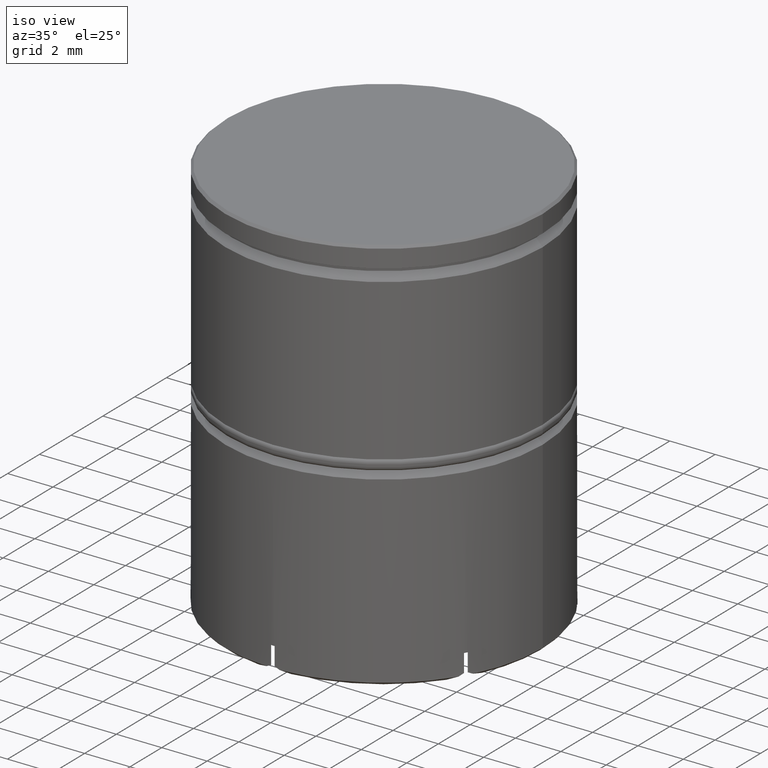
[diagram: clean part render]
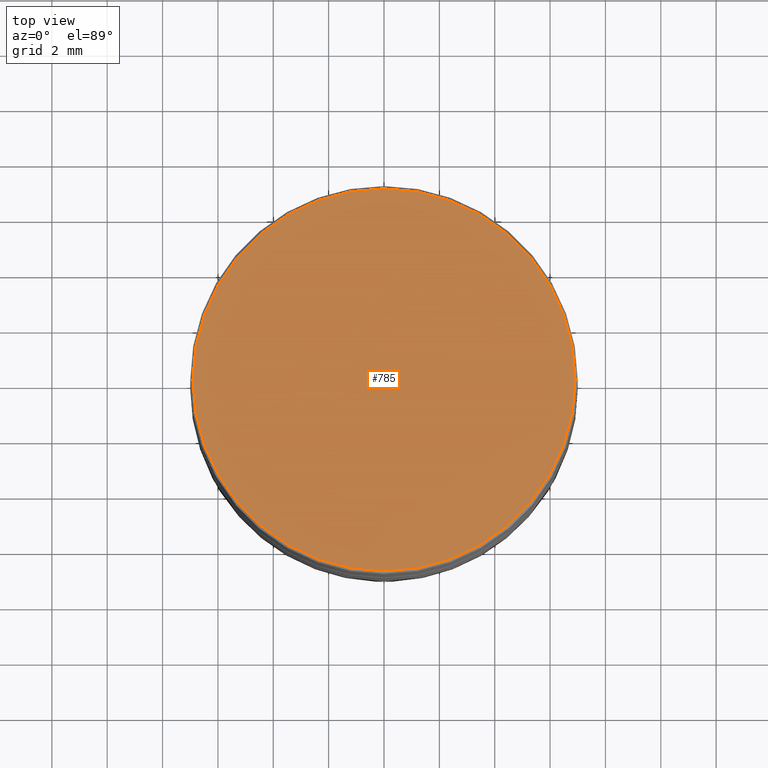
[diagram: tour spotlight — one face highlighted and labeled with its STEP entity id]
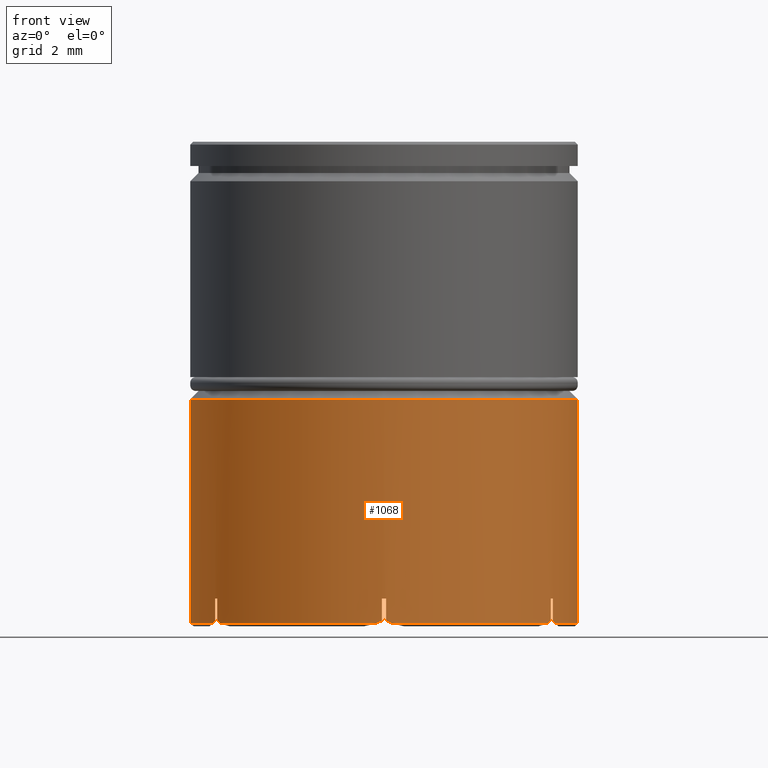
[diagram: tour spotlight — one face highlighted and labeled with its STEP entity id]
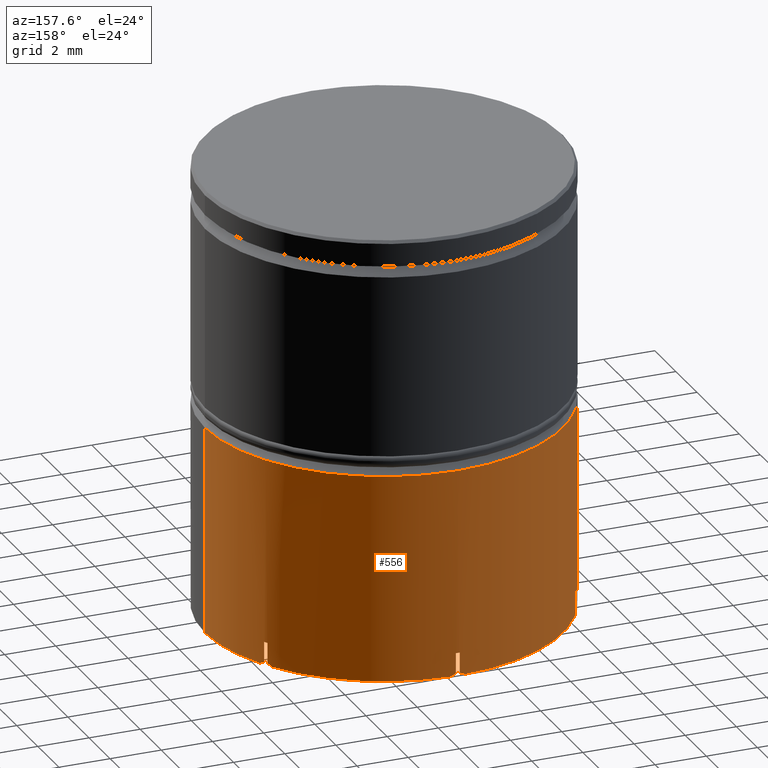
[diagram: tour spotlight — one face highlighted and labeled with its STEP entity id]
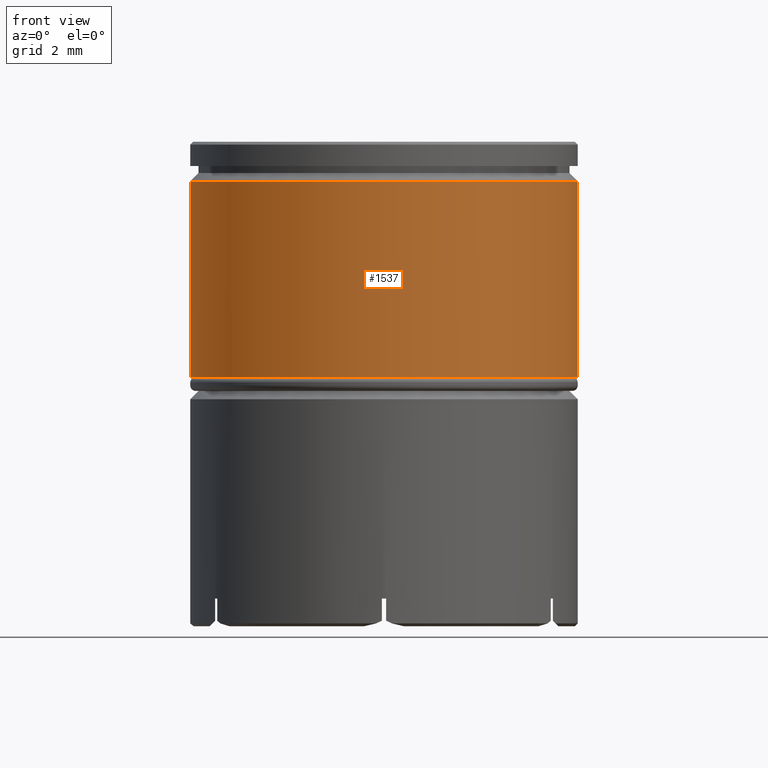
[diagram: tour spotlight — one face highlighted and labeled with its STEP entity id]
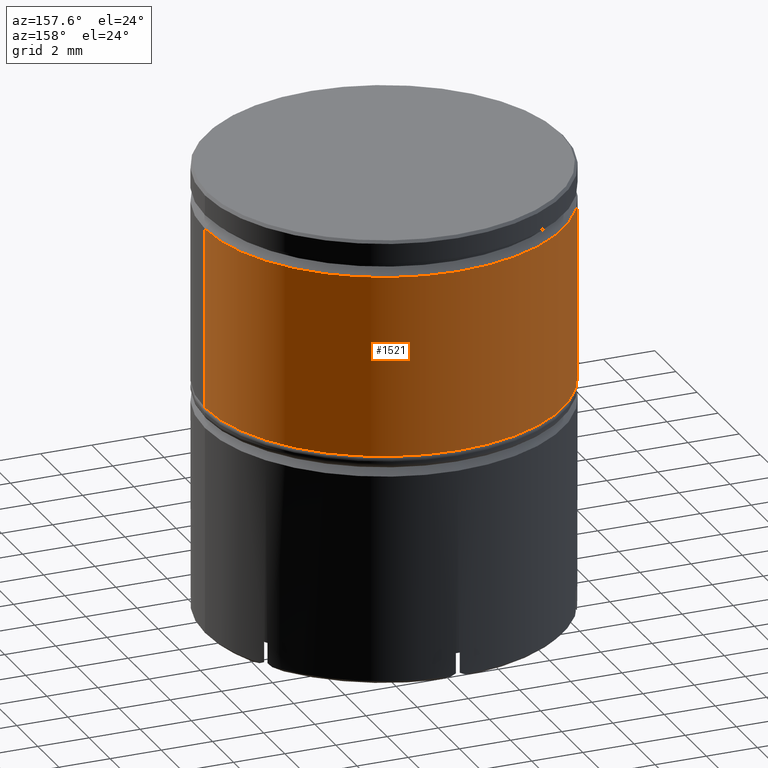
[diagram: tour spotlight — one face highlighted and labeled with its STEP entity id]
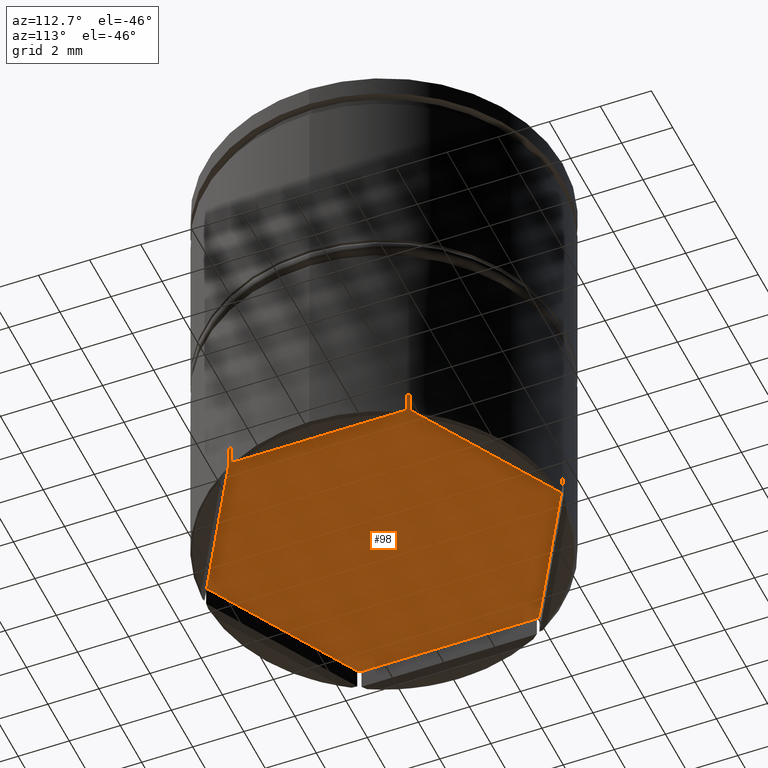
[diagram: tour spotlight — one face highlighted and labeled with its STEP entity id]
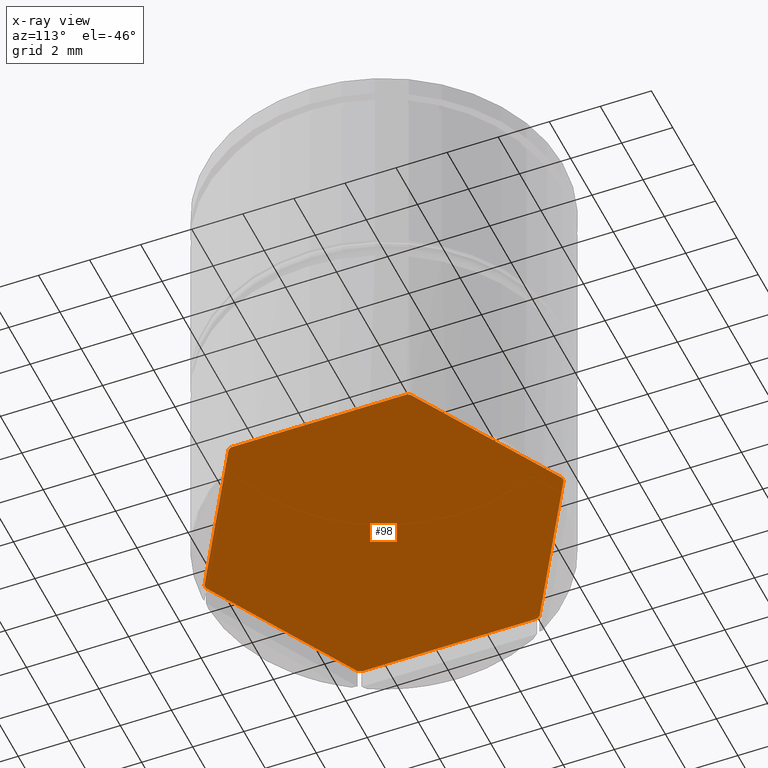
[diagram: x-ray of the same camera — body ghosted, this tour face saturated]
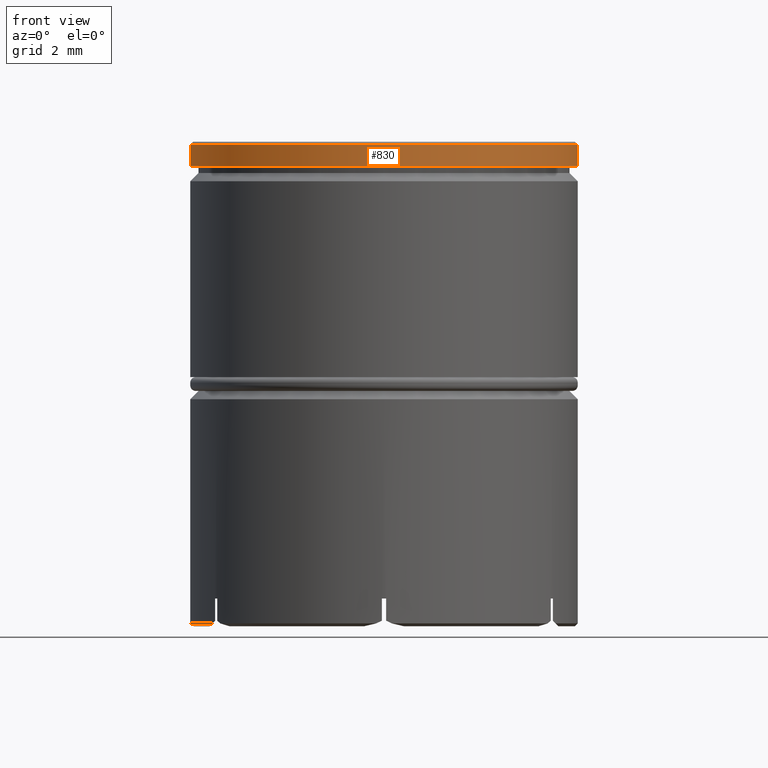
[diagram: tour spotlight — one face highlighted and labeled with its STEP entity id]
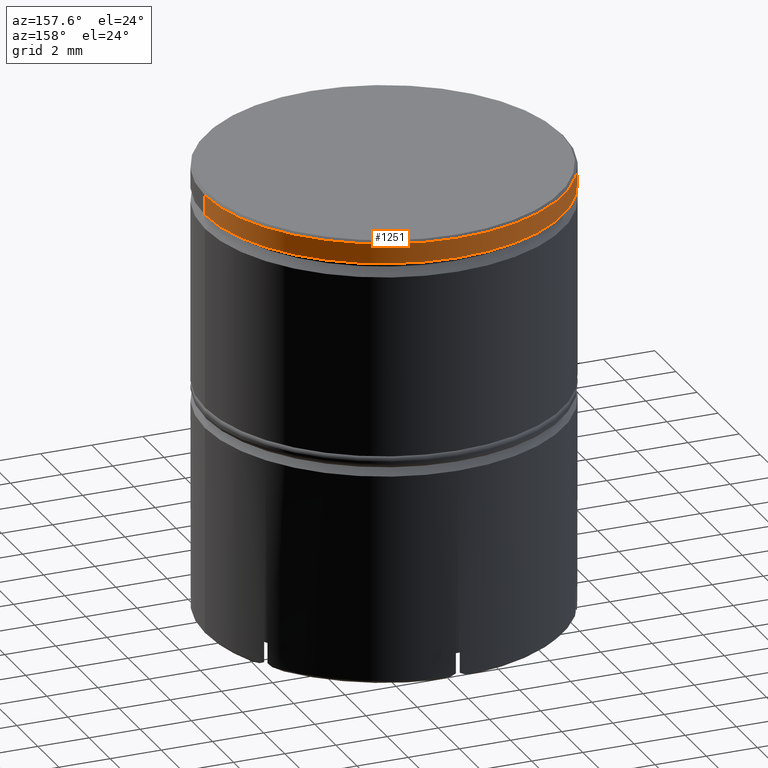
[diagram: tour spotlight — one face highlighted and labeled with its STEP entity id]
A machine part: a face-by-face anatomy tour. The part has 53 B-rep faces; the first image is the clean iso view, then the 8 largest visible faces are spotlighted one at a time (largest first), each with its STEP entity span.

Face 1 — top view, entity #785. In plain terms, the highlighted planar face has unit normal (0, -0, 1).
Definition (entity closure, byte-faithful):
#77 = EDGE_CURVE ( 'NONE', #175, #1532, #960, .T. ) ;
#108 = AXIS2_PLACEMENT_3D ( 'NONE', #1475, #571, #1193 ) ;
#175 = VERTEX_POINT ( 'NONE', #1267 ) ;
#193 = PLANE ( 'NONE',  #108 ) ;
#196 = DIRECTION ( 'NONE',  ( 1.000000000000000000, 0.000000000000000000, 0.000000000000000000 ) ) ;
#226 = DIRECTION ( 'NONE',  ( 1.000000000000000000, 0.000000000000000000, 0.000000000000000000 ) ) ;
#325 = EDGE_CURVE ( 'NONE', #1532, #175, #1529, .T. ) ;
#335 = FACE_OUTER_BOUND ( 'NONE', #1044, .T. ) ;
#571 = DIRECTION ( 'NONE',  ( 0.000000000000000000, -0.000000000000000000, 1.000000000000000000 ) ) ;
#690 = CARTESIAN_POINT ( 'NONE',  ( 0.000000000000000000, 0.000000000000000000, 0.000000000000000000 ) ) ;
#693 = CARTESIAN_POINT ( 'NONE',  ( 0.000000000000000000, 0.000000000000000000, 0.000000000000000000 ) ) ;
#785 = ADVANCED_FACE ( 'NONE', ( #335 ), #193, .T. ) ;
#822 = AXIS2_PLACEMENT_3D ( 'NONE', #690, #1196, #196 ) ;
#960 = CIRCLE ( 'NONE', #1583, 6.899999999999999467 ) ;
#965 = ORIENTED_EDGE ( 'NONE', *, *, #325, .T. ) ;
#1044 = EDGE_LOOP ( 'NONE', ( #1090, #965 ) ) ;
#1090 = ORIENTED_EDGE ( 'NONE', *, *, #77, .T. ) ;
#1193 = DIRECTION ( 'NONE',  ( 1.000000000000000000, 0.000000000000000000, 0.000000000000000000 ) ) ;
#1196 = DIRECTION ( 'NONE',  ( -0.000000000000000000, -0.000000000000000000, 1.000000000000000000 ) ) ;
#1267 = CARTESIAN_POINT ( 'NONE',  ( -6.899999999999999467, 0.000000000000000000, 0.000000000000000000 ) ) ;
#1388 = DIRECTION ( 'NONE',  ( -0.000000000000000000, -0.000000000000000000, 1.000000000000000000 ) ) ;
#1446 = CARTESIAN_POINT ( 'NONE',  ( 6.899999999999999467, 8.511295254074105418E-16, 0.000000000000000000 ) ) ;
#1475 = CARTESIAN_POINT ( 'NONE',  ( 0.000000000000000000, 0.000000000000000000, 0.000000000000000000 ) ) ;
#1529 = CIRCLE ( 'NONE', #822, 6.899999999999999467 ) ;
#1532 = VERTEX_POINT ( 'NONE', #1446 ) ;
#1583 = AXIS2_PLACEMENT_3D ( 'NONE', #693, #1388, #226 ) ;

Face 2 — front view, entity #1068. In plain terms, the highlighted cylindrical surface (partial cylindrical patch) has radius 7 mm, axis along (-0, -0, 1).
Definition (entity closure, byte-faithful):
#4 = DIRECTION ( 'NONE',  ( -1.000000000000000000, 3.552713678800500929E-15, 0.000000000000000000 ) ) ;
#7 = CARTESIAN_POINT ( 'NONE',  ( -0.2857505441059412510, -6.994165184390713108, -17.39999999999999858 ) ) ;
#13 = CARTESIAN_POINT ( 'NONE',  ( 5.914249455894056595, -3.744549822536331174, -17.39999999999999858 ) ) ;
#32 = CARTESIAN_POINT ( 'NONE',  ( 0.000000000000000000, 0.000000000000000000, -17.39999999999999858 ) ) ;
#37 =( BOUNDED_CURVE ( )  B_SPLINE_CURVE ( 3, ( #1435, #159, #542, #932 ),
 .UNSPECIFIED., .F., .T. ) 
 B_SPLINE_CURVE_WITH_KNOTS ( ( 4, 4 ),
 ( 3.624358576915526431, 3.654281804241772846 ),
 .UNSPECIFIED. ) 
 CURVE ( )  GEOMETRIC_REPRESENTATION_ITEM ( )  RATIONAL_B_SPLINE_CURVE ( ( 1.000000000000000000, 0.9999253847640983128, 0.9999253847640983128, 1.000000000000000000 ) ) 
 REPRESENTATION_ITEM ( '' )  );
#48 = CARTESIAN_POINT ( 'NONE',  ( 0.07636585976015337895, -6.999583434424016204, -16.50000000000000000 ) ) ;
#54 = LINE ( 'NONE', #303, #1389 ) ;
#61 = CARTESIAN_POINT ( 'NONE',  ( -6.023634140239851220, -3.565926491746138183, -16.50000000000000000 ) ) ;
#83 = ORIENTED_EDGE ( 'NONE', *, *, #529, .T. ) ;
#96 = CARTESIAN_POINT ( 'NONE',  ( -7.000000000000000888, 8.572527594031474176E-16, 0.000000000000000000 ) ) ;
#112 = CARTESIAN_POINT ( 'NONE',  ( -6.023634140239850332, -3.565926491746141735, -17.30000000000000071 ) ) ;
#114 = DIRECTION ( 'NONE',  ( -0.000000000000000000, -0.000000000000000000, 1.000000000000000000 ) ) ;
#116 = CARTESIAN_POINT ( 'NONE',  ( 0.000000000000000000, 0.000000000000000000, 0.000000000000000000 ) ) ;
#120 = EDGE_CURVE ( 'NONE', #318, #789, #1285, .T. ) ;
#126 = EDGE_LOOP ( 'NONE', ( #786, #1383, #911, #867, #654, #721, #1561, #1164, #597, #1602, #222, #192, #83, #1269, #359, #417, #1356, #1013, #362, #1226, #1453, #1074 ) ) ;
#146 = CARTESIAN_POINT ( 'NONE',  ( -6.200000000000000178, -3.249615361854388595, -17.39999999999999858 ) ) ;
#149 = DIRECTION ( 'NONE',  ( 0.000000000000000000, 0.000000000000000000, -1.000000000000000000 ) ) ;
#159 = CARTESIAN_POINT ( 'NONE',  ( 5.951600521272994548, -3.685556477925197694, -17.36758579760201471 ) ) ;
#168 = CARTESIAN_POINT ( 'NONE',  ( 6.200000000000001066, -3.249615361854383266, -17.39999999999999858 ) ) ;
#178 = VERTEX_POINT ( 'NONE', #168 ) ;
#186 = CARTESIAN_POINT ( 'NONE',  ( 0.000000000000000000, 0.000000000000000000, -16.50000000000000000 ) ) ;
#192 = ORIENTED_EDGE ( 'NONE', *, *, #1341, .F. ) ;
#222 = ORIENTED_EDGE ( 'NONE', *, *, #488, .T. ) ;
#223 = CARTESIAN_POINT ( 'NONE',  ( -6.100000000000003197, -3.433656942677875357, -16.50000000000000000 ) ) ;
#232 = CARTESIAN_POINT ( 'NONE',  ( 7.000000000000000888, 0.000000000000000000, 0.000000000000000000 ) ) ;
#256 = VERTEX_POINT ( 'NONE', #7 ) ;
#274 = CARTESIAN_POINT ( 'NONE',  ( -6.100000000000003197, -3.433656942677875357, -17.30000000000000071 ) ) ;
#299 = AXIS2_PLACEMENT_3D ( 'NONE', #463, #1464, #1112 ) ;
#301 = VERTEX_POINT ( 'NONE', #819 ) ;
#303 = CARTESIAN_POINT ( 'NONE',  ( 0.07636585976015727861, -6.999583434424017092, 0.000000000000000000 ) ) ;
#318 = VERTEX_POINT ( 'NONE', #948 ) ;
#324 = CARTESIAN_POINT ( 'NONE',  ( 0.000000000000000000, 0.000000000000000000, -17.39999999999999858 ) ) ;
#334 = VERTEX_POINT ( 'NONE', #1572 ) ;
#336 = VERTEX_POINT ( 'NONE', #1330 ) ;
#347 = VECTOR ( 'NONE', #1471, 1000.000000000000000 ) ;
#359 = ORIENTED_EDGE ( 'NONE', *, *, #1307, .T. ) ;
#362 = ORIENTED_EDGE ( 'NONE', *, *, #783, .T. ) ;
#377 = AXIS2_PLACEMENT_3D ( 'NONE', #1352, #491, #1227 ) ;
#378 = EDGE_CURVE ( 'NONE', #495, #301, #1056, .T. ) ;
#382 = CARTESIAN_POINT ( 'NONE',  ( -5.951600521272996325, -3.685556477925193697, -17.36758579760201471 ) ) ;
#391 = EDGE_CURVE ( 'NONE', #821, #757, #1578, .T. ) ;
#393 = VERTEX_POINT ( 'NONE', #48 ) ;
#417 = ORIENTED_EDGE ( 'NONE', *, *, #391, .F. ) ;
#421 =( BOUNDED_CURVE ( )  B_SPLINE_CURVE ( 3, ( #964, #1459, #1097, #566 ),
 .UNSPECIFIED., .F., .T. ) 
 B_SPLINE_CURVE_WITH_KNOTS ( ( 4, 4 ),
 ( 2.628903502937813386, 2.658826730264059801 ),
 .UNSPECIFIED. ) 
 CURVE ( )  GEOMETRIC_REPRESENTATION_ITEM ( )  RATIONAL_B_SPLINE_CURVE ( ( 1.000000000000000000, 0.9999253847640983128, 0.9999253847640983128, 1.000000000000000000 ) ) 
 REPRESENTATION_ITEM ( '' )  );
#430 = CIRCLE ( 'NONE', #642, 7.000000000000000888 ) ;
#438 = VERTEX_POINT ( 'NONE', #223 ) ;
#440 = CARTESIAN_POINT ( 'NONE',  ( -0.07636585976015164423, -6.999583434424015316, -16.50000000000000000 ) ) ;
#442 = CIRCLE ( 'NONE', #675, 7.000000000000000888 ) ;
#450 = CARTESIAN_POINT ( 'NONE',  ( 6.023634140239849444, -3.565926491746140847, -16.50000000000000000 ) ) ;
#463 = CARTESIAN_POINT ( 'NONE',  ( 0.000000000000000000, 0.000000000000000000, -16.50000000000000000 ) ) ;
#465 = EDGE_CURVE ( 'NONE', #1433, #336, #1236, .T. ) ;
#467 = CARTESIAN_POINT ( 'NONE',  ( -6.100000000000003197, -3.433656942677875357, 0.000000000000000000 ) ) ;
#480 = VECTOR ( 'NONE', #114, 1000.000000000000000 ) ;
#488 = EDGE_CURVE ( 'NONE', #1374, #393, #934, .T. ) ;
#491 = DIRECTION ( 'NONE',  ( -0.000000000000000000, -0.000000000000000000, 1.000000000000000000 ) ) ;
#495 = VERTEX_POINT ( 'NONE', #1496 ) ;
#522 = EDGE_CURVE ( 'NONE', #767, #617, #1302, .T. ) ;
#529 = EDGE_CURVE ( 'NONE', #1046, #767, #692, .T. ) ;
#542 = CARTESIAN_POINT ( 'NONE',  ( 5.988064803512612500, -3.626010924656296375, -17.33424997690855562 ) ) ;
#543 = EDGE_CURVE ( 'NONE', #495, #633, #1367, .T. ) ;
#557 = EDGE_CURVE ( 'NONE', #438, #789, #955, .T. ) ;
#561 = VECTOR ( 'NONE', #1339, 1000.000000000000000 ) ;
#566 = CARTESIAN_POINT ( 'NONE',  ( 6.200000000000001066, -3.249615361854383266, -17.39999999999999858 ) ) ;
#583 = AXIS2_PLACEMENT_3D ( 'NONE', #1533, #1410, #1396 ) ;
#584 = DIRECTION ( 'NONE',  ( -0.000000000000000000, -0.000000000000000000, 1.000000000000000000 ) ) ;
#592 = VERTEX_POINT ( 'NONE', #790 ) ;
#594 = EDGE_CURVE ( 'NONE', #1374, #334, #1292, .T. ) ;
#597 = ORIENTED_EDGE ( 'NONE', *, *, #1480, .T. ) ;
#603 = CARTESIAN_POINT ( 'NONE',  ( 0.07636585976015727861, -6.999583434424017092, -17.30000000000000071 ) ) ;
#613 = CARTESIAN_POINT ( 'NONE',  ( -6.100000000000003197, -3.433656942677875357, -17.30000000000000071 ) ) ;
#615 = CARTESIAN_POINT ( 'NONE',  ( 0.07636585976015727861, -6.999583434424017092, -17.30000000000000071 ) ) ;
#617 = VERTEX_POINT ( 'NONE', #13 ) ;
#618 = EDGE_CURVE ( 'NONE', #178, #1433, #430, .T. ) ;
#624 = AXIS2_PLACEMENT_3D ( 'NONE', #1209, #584, #713 ) ;
#633 = VERTEX_POINT ( 'NONE', #1263 ) ;
#642 = AXIS2_PLACEMENT_3D ( 'NONE', #32, #1283, #4 ) ;
#652 = CARTESIAN_POINT ( 'NONE',  ( -6.167585797602018083, -3.311459005636527841, -17.36758579760201471 ) ) ;
#654 = ORIENTED_EDGE ( 'NONE', *, *, #557, .T. ) ;
#662 = CARTESIAN_POINT ( 'NONE',  ( -0.07636585976015554389, -6.999583434424017092, 0.000000000000000000 ) ) ;
#675 = AXIS2_PLACEMENT_3D ( 'NONE', #1075, #1576, #834 ) ;
#692 =( BOUNDED_CURVE ( )  B_SPLINE_CURVE ( 3, ( #603, #1101, #868, #991 ),
 .UNSPECIFIED., .F., .T. ) 
 B_SPLINE_CURVE_WITH_KNOTS ( ( 4, 4 ),
 ( 2.628903502937813386, 2.658826730264059801 ),
 .UNSPECIFIED. ) 
 CURVE ( )  GEOMETRIC_REPRESENTATION_ITEM ( )  RATIONAL_B_SPLINE_CURVE ( ( 1.000000000000000000, 0.9999253847640983128, 0.9999253847640983128, 1.000000000000000000 ) ) 
 REPRESENTATION_ITEM ( '' )  );
#696 = DIRECTION ( 'NONE',  ( -1.000000000000000000, 5.329070518200751394E-14, 0.000000000000000000 ) ) ;
#707 = CARTESIAN_POINT ( 'NONE',  ( 6.023634140239847667, -3.565926491746145288, 0.000000000000000000 ) ) ;
#713 = DIRECTION ( 'NONE',  ( -1.000000000000000000, 0.000000000000000000, 0.000000000000000000 ) ) ;
#721 = ORIENTED_EDGE ( 'NONE', *, *, #120, .F. ) ;
#730 =( BOUNDED_CURVE ( )  B_SPLINE_CURVE ( 3, ( #112, #1393, #382, #1376 ),
 .UNSPECIFIED., .F., .T. ) 
 B_SPLINE_CURVE_WITH_KNOTS ( ( 4, 4 ),
 ( 2.628903502937813830, 2.658826730264059357 ),
 .UNSPECIFIED. ) 
 CURVE ( )  GEOMETRIC_REPRESENTATION_ITEM ( )  RATIONAL_B_SPLINE_CURVE ( ( 1.000000000000000000, 0.9999253847640983128, 0.9999253847640983128, 1.000000000000000000 ) ) 
 REPRESENTATION_ITEM ( '' )  );
#736 = DIRECTION ( 'NONE',  ( -0.000000000000000000, -0.000000000000000000, 1.000000000000000000 ) ) ;
#757 = VERTEX_POINT ( 'NONE', #1065 ) ;
#767 = VERTEX_POINT ( 'NONE', #1223 ) ;
#772 = EDGE_CURVE ( 'NONE', #438, #1192, #956, .T. ) ;
#783 = EDGE_CURVE ( 'NONE', #885, #178, #421, .T. ) ;
#786 = ORIENTED_EDGE ( 'NONE', *, *, #543, .F. ) ;
#789 = VERTEX_POINT ( 'NONE', #61 ) ;
#790 = CARTESIAN_POINT ( 'NONE',  ( 6.100000000000003197, -3.433656942677874468, -16.50000000000000000 ) ) ;
#799 = AXIS2_PLACEMENT_3D ( 'NONE', #324, #828, #961 ) ;
#819 = CARTESIAN_POINT ( 'NONE',  ( -6.200000000000000178, -3.249615361854388595, -17.39999999999999858 ) ) ;
#821 = VERTEX_POINT ( 'NONE', #450 ) ;
#828 = DIRECTION ( 'NONE',  ( -0.000000000000000000, -0.000000000000000000, 1.000000000000000000 ) ) ;
#834 = DIRECTION ( 'NONE',  ( 1.000000000000000000, 0.000000000000000000, 0.000000000000000000 ) ) ;
#835 = DIRECTION ( 'NONE',  ( 0.000000000000000000, 0.000000000000000000, -1.000000000000000000 ) ) ;
#862 = LINE ( 'NONE', #1363, #1109 ) ;
#867 = ORIENTED_EDGE ( 'NONE', *, *, #772, .F. ) ;
#868 = CARTESIAN_POINT ( 'NONE',  ( 0.2159852763290228406, -6.997015483561718874, -17.36758579760201471 ) ) ;
#885 = VERTEX_POINT ( 'NONE', #889 ) ;
#889 = CARTESIAN_POINT ( 'NONE',  ( 6.100000000000003197, -3.433656942677874468, -17.30000000000000071 ) ) ;
#890 = CIRCLE ( 'NONE', #1567, 7.000000000000000888 ) ;
#908 = VECTOR ( 'NONE', #835, 1000.000000000000000 ) ;
#911 = ORIENTED_EDGE ( 'NONE', *, *, #962, .T. ) ;
#928 =( BOUNDED_CURVE ( )  B_SPLINE_CURVE ( 3, ( #146, #652, #1153, #274 ),
 .UNSPECIFIED., .F., .T. ) 
 B_SPLINE_CURVE_WITH_KNOTS ( ( 4, 4 ),
 ( 3.624358576915527763, 3.654281804241773290 ),
 .UNSPECIFIED. ) 
 CURVE ( )  GEOMETRIC_REPRESENTATION_ITEM ( )  RATIONAL_B_SPLINE_CURVE ( ( 1.000000000000000000, 0.9999253847640983128, 0.9999253847640983128, 1.000000000000000000 ) ) 
 REPRESENTATION_ITEM ( '' )  );
#932 = CARTESIAN_POINT ( 'NONE',  ( 6.023634140239847667, -3.565926491746145288, -17.30000000000000071 ) ) ;
#934 = CIRCLE ( 'NONE', #299, 7.000000000000000888 ) ;
#948 = CARTESIAN_POINT ( 'NONE',  ( -6.023634140239850332, -3.565926491746141735, -17.30000000000000071 ) ) ;
#952 = DIRECTION ( 'NONE',  ( -0.000000000000000000, -0.000000000000000000, 1.000000000000000000 ) ) ;
#955 = CIRCLE ( 'NONE', #583, 7.000000000000000888 ) ;
#956 = LINE ( 'NONE', #467, #561 ) ;
#961 = DIRECTION ( 'NONE',  ( -1.000000000000000000, 0.000000000000000000, 0.000000000000000000 ) ) ;
#962 = EDGE_CURVE ( 'NONE', #301, #1192, #928, .T. ) ;
#964 = CARTESIAN_POINT ( 'NONE',  ( 6.100000000000003197, -3.433656942677874468, -17.30000000000000071 ) ) ;
#991 = CARTESIAN_POINT ( 'NONE',  ( 0.2857505441059460249, -6.994165184390713108, -17.39999999999999858 ) ) ;
#1013 = ORIENTED_EDGE ( 'NONE', *, *, #1128, .F. ) ;
#1042 = DIRECTION ( 'NONE',  ( -0.000000000000000000, -0.000000000000000000, 1.000000000000000000 ) ) ;
#1043 = DIRECTION ( 'NONE',  ( -0.000000000000000000, -0.000000000000000000, 1.000000000000000000 ) ) ;
#1046 = VERTEX_POINT ( 'NONE', #615 ) ;
#1055 =( BOUNDED_CURVE ( )  B_SPLINE_CURVE ( 3, ( #1440, #1454, #1571, #1225 ),
 .UNSPECIFIED., .F., .T. ) 
 B_SPLINE_CURVE_WITH_KNOTS ( ( 4, 4 ),
 ( 3.624358576915527319, 3.654281804241773290 ),
 .UNSPECIFIED. ) 
 CURVE ( )  GEOMETRIC_REPRESENTATION_ITEM ( )  RATIONAL_B_SPLINE_CURVE ( ( 1.000000000000000000, 0.9999253847640983128, 0.9999253847640983128, 1.000000000000000000 ) ) 
 REPRESENTATION_ITEM ( '' )  );
#1056 = CIRCLE ( 'NONE', #799, 7.000000000000000888 ) ;
#1065 = CARTESIAN_POINT ( 'NONE',  ( 6.023634140239847667, -3.565926491746145288, -17.30000000000000071 ) ) ;
#1068 = ADVANCED_FACE ( 'NONE', ( #1248 ), #1221, .T. ) ;
#1074 = ORIENTED_EDGE ( 'NONE', *, *, #1434, .T. ) ;
#1075 = CARTESIAN_POINT ( 'NONE',  ( 0.000000000000000000, 0.000000000000000000, -9.300000000000002487 ) ) ;
#1083 = CARTESIAN_POINT ( 'NONE',  ( 7.000000000000000888, 0.000000000000000000, -17.39999999999999858 ) ) ;
#1094 = DIRECTION ( 'NONE',  ( 1.000000000000000000, 0.000000000000000000, 0.000000000000000000 ) ) ;
#1097 = CARTESIAN_POINT ( 'NONE',  ( 6.167585797602020747, -3.311459005636522068, -17.36758579760201471 ) ) ;
#1101 = CARTESIAN_POINT ( 'NONE',  ( 0.1461851733959463606, -6.998821701677544915, -17.33424997690855562 ) ) ;
#1104 = VECTOR ( 'NONE', #1043, 1000.000000000000000 ) ;
#1109 = VECTOR ( 'NONE', #736, 1000.000000000000000 ) ;
#1112 = DIRECTION ( 'NONE',  ( -1.000000000000000000, 0.000000000000000000, 0.000000000000000000 ) ) ;
#1128 = EDGE_CURVE ( 'NONE', #885, #592, #862, .T. ) ;
#1136 = VECTOR ( 'NONE', #149, 1000.000000000000000 ) ;
#1153 = CARTESIAN_POINT ( 'NONE',  ( -6.134249976908560775, -3.372810777021251649, -17.33424997690855918 ) ) ;
#1164 = ORIENTED_EDGE ( 'NONE', *, *, #1466, .T. ) ;
#1168 = CARTESIAN_POINT ( 'NONE',  ( -6.023634140239850332, -3.565926491746141735, 0.000000000000000000 ) ) ;
#1192 = VERTEX_POINT ( 'NONE', #613 ) ;
#1209 = CARTESIAN_POINT ( 'NONE',  ( 0.000000000000000000, 0.000000000000000000, -17.39999999999999858 ) ) ;
#1221 = CYLINDRICAL_SURFACE ( 'NONE', #1636, 7.000000000000000888 ) ;
#1223 = CARTESIAN_POINT ( 'NONE',  ( 0.2857505441059460249, -6.994165184390713108, -17.39999999999999858 ) ) ;
#1225 = CARTESIAN_POINT ( 'NONE',  ( -0.07636585976015554389, -6.999583434424017092, -17.30000000000000071 ) ) ;
#1226 = ORIENTED_EDGE ( 'NONE', *, *, #618, .T. ) ;
#1227 = DIRECTION ( 'NONE',  ( -1.000000000000000000, 0.000000000000000000, 0.000000000000000000 ) ) ;
#1233 = VERTEX_POINT ( 'NONE', #1275 ) ;
#1236 = LINE ( 'NONE', #232, #347 ) ;
#1248 = FACE_OUTER_BOUND ( 'NONE', #126, .T. ) ;
#1263 = CARTESIAN_POINT ( 'NONE',  ( -7.000000000000000888, 8.572527594031474176E-16, -9.300000000000002487 ) ) ;
#1269 = ORIENTED_EDGE ( 'NONE', *, *, #522, .T. ) ;
#1275 = CARTESIAN_POINT ( 'NONE',  ( -5.914249455894059260, -3.744549822536325401, -17.39999999999999858 ) ) ;
#1283 = DIRECTION ( 'NONE',  ( -0.000000000000000000, -0.000000000000000000, 1.000000000000000000 ) ) ;
#1285 = LINE ( 'NONE', #1168, #1104 ) ;
#1292 = LINE ( 'NONE', #662, #1136 ) ;
#1302 = CIRCLE ( 'NONE', #377, 7.000000000000000888 ) ;
#1307 = EDGE_CURVE ( 'NONE', #617, #757, #37, .T. ) ;
#1330 = CARTESIAN_POINT ( 'NONE',  ( 7.000000000000000888, 0.000000000000000000, -9.300000000000002487 ) ) ;
#1335 = CIRCLE ( 'NONE', #624, 7.000000000000000888 ) ;
#1339 = DIRECTION ( 'NONE',  ( 0.000000000000000000, 0.000000000000000000, -1.000000000000000000 ) ) ;
#1341 = EDGE_CURVE ( 'NONE', #1046, #393, #54, .T. ) ;
#1352 = CARTESIAN_POINT ( 'NONE',  ( 0.000000000000000000, 0.000000000000000000, -17.39999999999999858 ) ) ;
#1356 = ORIENTED_EDGE ( 'NONE', *, *, #1511, .T. ) ;
#1363 = CARTESIAN_POINT ( 'NONE',  ( 6.100000000000003197, -3.433656942677874468, 0.000000000000000000 ) ) ;
#1367 = LINE ( 'NONE', #96, #480 ) ;
#1374 = VERTEX_POINT ( 'NONE', #440 ) ;
#1376 = CARTESIAN_POINT ( 'NONE',  ( -5.914249455894059260, -3.744549822536325401, -17.39999999999999858 ) ) ;
#1383 = ORIENTED_EDGE ( 'NONE', *, *, #378, .T. ) ;
#1389 = VECTOR ( 'NONE', #1042, 1000.000000000000000 ) ;
#1393 = CARTESIAN_POINT ( 'NONE',  ( -5.988064803512614276, -3.626010924656295042, -17.33424997690855918 ) ) ;
#1396 = DIRECTION ( 'NONE',  ( -1.000000000000000000, -2.664535259100375697E-15, 0.000000000000000000 ) ) ;
#1410 = DIRECTION ( 'NONE',  ( -0.000000000000000000, -0.000000000000000000, 1.000000000000000000 ) ) ;
#1433 = VERTEX_POINT ( 'NONE', #1083 ) ;
#1434 = EDGE_CURVE ( 'NONE', #336, #633, #442, .T. ) ;
#1435 = CARTESIAN_POINT ( 'NONE',  ( 5.914249455894056595, -3.744549822536331174, -17.39999999999999858 ) ) ;
#1440 = CARTESIAN_POINT ( 'NONE',  ( -0.2857505441059412510, -6.994165184390713108, -17.39999999999999858 ) ) ;
#1453 = ORIENTED_EDGE ( 'NONE', *, *, #465, .T. ) ;
#1454 = CARTESIAN_POINT ( 'NONE',  ( -0.2159852763290208699, -6.997015483561718874, -17.36758579760201471 ) ) ;
#1459 = CARTESIAN_POINT ( 'NONE',  ( 6.134249976908562552, -3.372810777021247652, -17.33424997690855562 ) ) ;
#1464 = DIRECTION ( 'NONE',  ( -0.000000000000000000, -0.000000000000000000, 1.000000000000000000 ) ) ;
#1466 = EDGE_CURVE ( 'NONE', #1233, #256, #1335, .T. ) ;
#1471 = DIRECTION ( 'NONE',  ( -0.000000000000000000, -0.000000000000000000, 1.000000000000000000 ) ) ;
#1480 = EDGE_CURVE ( 'NONE', #256, #334, #1055, .T. ) ;
#1496 = CARTESIAN_POINT ( 'NONE',  ( -7.000000000000000888, 8.572527594031474176E-16, -17.39999999999999858 ) ) ;
#1511 = EDGE_CURVE ( 'NONE', #821, #592, #890, .T. ) ;
#1533 = CARTESIAN_POINT ( 'NONE',  ( 0.000000000000000000, 0.000000000000000000, -16.50000000000000000 ) ) ;
#1561 = ORIENTED_EDGE ( 'NONE', *, *, #1570, .T. ) ;
#1567 = AXIS2_PLACEMENT_3D ( 'NONE', #186, #952, #696 ) ;
#1570 = EDGE_CURVE ( 'NONE', #318, #1233, #730, .T. ) ;
#1571 = CARTESIAN_POINT ( 'NONE',  ( -0.1461851733959461941, -6.998821701677545803, -17.33424997690855562 ) ) ;
#1572 = CARTESIAN_POINT ( 'NONE',  ( -0.07636585976015554389, -6.999583434424017092, -17.30000000000000071 ) ) ;
#1576 = DIRECTION ( 'NONE',  ( 0.000000000000000000, 0.000000000000000000, -1.000000000000000000 ) ) ;
#1578 = LINE ( 'NONE', #707, #908 ) ;
#1602 = ORIENTED_EDGE ( 'NONE', *, *, #594, .F. ) ;
#1614 = DIRECTION ( 'NONE',  ( -0.000000000000000000, -0.000000000000000000, 1.000000000000000000 ) ) ;
#1636 = AXIS2_PLACEMENT_3D ( 'NONE', #116, #1614, #1094 ) ;

Face 3 — auxiliary view, entity #556. In plain terms, the highlighted cylindrical surface (partial cylindrical patch) has radius 7 mm, axis along (-0, -0, 1).
Definition (entity closure, byte-faithful):
#10 = VERTEX_POINT ( 'NONE', #1222 ) ;
#11 = CARTESIAN_POINT ( 'NONE',  ( 0.1461851733959448063, 6.998821701677544915, -17.33424997690855562 ) ) ;
#36 = CARTESIAN_POINT ( 'NONE',  ( 0.07636585976015120014, 6.999583434424016204, -16.50000000000000000 ) ) ;
#50 = ORIENTED_EDGE ( 'NONE', *, *, #640, .T. ) ;
#72 =( BOUNDED_CURVE ( )  B_SPLINE_CURVE ( 3, ( #1515, #419, #1041, #771 ),
 .UNSPECIFIED., .F., .T. ) 
 B_SPLINE_CURVE_WITH_KNOTS ( ( 4, 4 ),
 ( 3.624358576915527763, 3.654281804241773735 ),
 .UNSPECIFIED. ) 
 CURVE ( )  GEOMETRIC_REPRESENTATION_ITEM ( )  RATIONAL_B_SPLINE_CURVE ( ( 1.000000000000000000, 0.9999253847640983128, 0.9999253847640983128, 1.000000000000000000 ) ) 
 REPRESENTATION_ITEM ( '' )  );
#96 = CARTESIAN_POINT ( 'NONE',  ( -7.000000000000000888, 8.572527594031474176E-16, 0.000000000000000000 ) ) ;
#101 = VERTEX_POINT ( 'NONE', #639 ) ;
#104 = CARTESIAN_POINT ( 'NONE',  ( -6.023634140239851220, 3.565926491746139071, -17.30000000000000426 ) ) ;
#113 = ORIENTED_EDGE ( 'NONE', *, *, #245, .F. ) ;
#114 = DIRECTION ( 'NONE',  ( -0.000000000000000000, -0.000000000000000000, 1.000000000000000000 ) ) ;
#123 = CARTESIAN_POINT ( 'NONE',  ( -6.023634140239849444, 3.565926491746141735, -16.50000000000000000 ) ) ;
#124 = CIRCLE ( 'NONE', #468, 7.000000000000000888 ) ;
#157 = VERTEX_POINT ( 'NONE', #36 ) ;
#158 = DIRECTION ( 'NONE',  ( -0.000000000000000000, -0.000000000000000000, 1.000000000000000000 ) ) ;
#160 = DIRECTION ( 'NONE',  ( -0.000000000000000000, -0.000000000000000000, 1.000000000000000000 ) ) ;
#172 = DIRECTION ( 'NONE',  ( 0.000000000000000000, 0.000000000000000000, -1.000000000000000000 ) ) ;
#179 = LINE ( 'NONE', #562, #229 ) ;
#183 = VERTEX_POINT ( 'NONE', #899 ) ;
#229 = VECTOR ( 'NONE', #172, 1000.000000000000000 ) ;
#232 = CARTESIAN_POINT ( 'NONE',  ( 7.000000000000000888, 0.000000000000000000, 0.000000000000000000 ) ) ;
#234 = DIRECTION ( 'NONE',  ( -0.000000000000000000, -0.000000000000000000, 1.000000000000000000 ) ) ;
#236 = DIRECTION ( 'NONE',  ( -0.000000000000000000, -0.000000000000000000, 1.000000000000000000 ) ) ;
#245 = EDGE_CURVE ( 'NONE', #1573, #183, #427, .T. ) ;
#252 = CARTESIAN_POINT ( 'NONE',  ( 0.000000000000000000, 0.000000000000000000, -17.39999999999999858 ) ) ;
#253 = ORIENTED_EDGE ( 'NONE', *, *, #543, .T. ) ;
#255 = CARTESIAN_POINT ( 'NONE',  ( 6.023634140239852108, 3.565926491746137295, -17.29999999999999716 ) ) ;
#279 = DIRECTION ( 'NONE',  ( 1.000000000000000000, 0.000000000000000000, 0.000000000000000000 ) ) ;
#285 = ORIENTED_EDGE ( 'NONE', *, *, #1611, .T. ) ;
#288 = CIRCLE ( 'NONE', #333, 7.000000000000000888 ) ;
#330 = DIRECTION ( 'NONE',  ( -1.000000000000000000, 1.776356839400250465E-15, 0.000000000000000000 ) ) ;
#333 = AXIS2_PLACEMENT_3D ( 'NONE', #392, #236, #1147 ) ;
#336 = VERTEX_POINT ( 'NONE', #1330 ) ;
#346 = CARTESIAN_POINT ( 'NONE',  ( 0.000000000000000000, 0.000000000000000000, -16.50000000000000000 ) ) ;
#347 = VECTOR ( 'NONE', #1471, 1000.000000000000000 ) ;
#352 = ORIENTED_EDGE ( 'NONE', *, *, #513, .T. ) ;
#355 = DIRECTION ( 'NONE',  ( -0.000000000000000000, -0.000000000000000000, 1.000000000000000000 ) ) ;
#371 = CARTESIAN_POINT ( 'NONE',  ( 0.07636585976015120014, 6.999583434424016204, -17.29999999999999716 ) ) ;
#372 = VERTEX_POINT ( 'NONE', #1448 ) ;
#374 = LINE ( 'NONE', #877, #1124 ) ;
#389 = CARTESIAN_POINT ( 'NONE',  ( 5.914249455894056595, 3.744549822536332062, -17.39999999999999858 ) ) ;
#392 = CARTESIAN_POINT ( 'NONE',  ( 0.000000000000000000, 0.000000000000000000, -17.39999999999999858 ) ) ;
#411 = VERTEX_POINT ( 'NONE', #942 ) ;
#412 = CYLINDRICAL_SURFACE ( 'NONE', #1213, 7.000000000000000888 ) ;
#415 = DIRECTION ( 'NONE',  ( 1.000000000000000000, 0.000000000000000000, 0.000000000000000000 ) ) ;
#419 = CARTESIAN_POINT ( 'NONE',  ( -5.951600521272996325, 3.685556477925192809, -17.36758579760201471 ) ) ;
#427 = LINE ( 'NONE', #544, #1577 ) ;
#429 = ORIENTED_EDGE ( 'NONE', *, *, #659, .T. ) ;
#432 = ORIENTED_EDGE ( 'NONE', *, *, #1286, .T. ) ;
#452 = EDGE_LOOP ( 'NONE', ( #1437, #253, #432, #1626, #1197, #1271, #684, #1024, #1246, #1443, #1291, #1116, #1439, #352, #113, #1282, #750, #50, #794, #429, #1416, #285 ) ) ;
#456 = EDGE_CURVE ( 'NONE', #1595, #1358, #1119, .T. ) ;
#465 = EDGE_CURVE ( 'NONE', #1433, #336, #1236, .T. ) ;
#468 = AXIS2_PLACEMENT_3D ( 'NONE', #791, #1419, #415 ) ;
#480 = VECTOR ( 'NONE', #114, 1000.000000000000000 ) ;
#495 = VERTEX_POINT ( 'NONE', #1496 ) ;
#501 = CARTESIAN_POINT ( 'NONE',  ( 6.200000000000002842, 3.249615361854381490, -17.39999999999999858 ) ) ;
#513 = EDGE_CURVE ( 'NONE', #157, #183, #1402, .T. ) ;
#541 = CARTESIAN_POINT ( 'NONE',  ( 0.000000000000000000, 0.000000000000000000, -16.50000000000000000 ) ) ;
#543 = EDGE_CURVE ( 'NONE', #495, #633, #1367, .T. ) ;
#544 = CARTESIAN_POINT ( 'NONE',  ( -0.07636585976014903521, 6.999583434424016204, 0.000000000000000000 ) ) ;
#556 = ADVANCED_FACE ( 'NONE', ( #620 ), #412, .T. ) ;
#562 = CARTESIAN_POINT ( 'NONE',  ( -6.023634140239851220, 3.565926491746139071, 0.000000000000000000 ) ) ;
#578 =( BOUNDED_CURVE ( )  B_SPLINE_CURVE ( 3, ( #823, #1087, #1591, #694 ),
 .UNSPECIFIED., .F., .T. ) 
 B_SPLINE_CURVE_WITH_KNOTS ( ( 4, 4 ),
 ( 2.628903502937812942, 2.658826730264058469 ),
 .UNSPECIFIED. ) 
 CURVE ( )  GEOMETRIC_REPRESENTATION_ITEM ( )  RATIONAL_B_SPLINE_CURVE ( ( 1.000000000000000000, 0.9999253847640983128, 0.9999253847640983128, 1.000000000000000000 ) ) 
 REPRESENTATION_ITEM ( '' )  );
#608 = EDGE_CURVE ( 'NONE', #936, #101, #1201, .T. ) ;
#610 = VERTEX_POINT ( 'NONE', #1627 ) ;
#616 = CARTESIAN_POINT ( 'NONE',  ( 5.988064803512614276, 3.626010924656292378, -17.33424997690855562 ) ) ;
#620 = FACE_OUTER_BOUND ( 'NONE', #452, .T. ) ;
#627 = EDGE_CURVE ( 'NONE', #1060, #1358, #1322, .T. ) ;
#633 = VERTEX_POINT ( 'NONE', #1263 ) ;
#639 = CARTESIAN_POINT ( 'NONE',  ( 6.100000000000003197, 3.433656942677876245, -17.30000000000000071 ) ) ;
#640 = EDGE_CURVE ( 'NONE', #411, #1200, #72, .T. ) ;
#655 = DIRECTION ( 'NONE',  ( -0.000000000000000000, -0.000000000000000000, 1.000000000000000000 ) ) ;
#659 = EDGE_CURVE ( 'NONE', #1005, #1130, #1272, .T. ) ;
#684 = ORIENTED_EDGE ( 'NONE', *, *, #793, .F. ) ;
#685 = CARTESIAN_POINT ( 'NONE',  ( 6.100000000000003197, 3.433656942677876245, -17.30000000000000071 ) ) ;
#694 = CARTESIAN_POINT ( 'NONE',  ( -0.2857505441059313145, 6.994165184390713108, -17.39999999999999858 ) ) ;
#722 = DIRECTION ( 'NONE',  ( -0.000000000000000000, -0.000000000000000000, 1.000000000000000000 ) ) ;
#734 = CARTESIAN_POINT ( 'NONE',  ( 6.023634140239852108, 3.565926491746137295, 0.000000000000000000 ) ) ;
#738 = CARTESIAN_POINT ( 'NONE',  ( 6.023634140239852108, 3.565926491746137295, -17.29999999999999716 ) ) ;
#744 = DIRECTION ( 'NONE',  ( -0.000000000000000000, -0.000000000000000000, 1.000000000000000000 ) ) ;
#750 = ORIENTED_EDGE ( 'NONE', *, *, #1447, .T. ) ;
#751 =( BOUNDED_CURVE ( )  B_SPLINE_CURVE ( 3, ( #738, #616, #1510, #389 ),
 .UNSPECIFIED., .F., .T. ) 
 B_SPLINE_CURVE_WITH_KNOTS ( ( 4, 4 ),
 ( 2.628903502937812942, 2.658826730264059801 ),
 .UNSPECIFIED. ) 
 CURVE ( )  GEOMETRIC_REPRESENTATION_ITEM ( )  RATIONAL_B_SPLINE_CURVE ( ( 1.000000000000000000, 0.9999253847640983128, 0.9999253847640983128, 1.000000000000000000 ) ) 
 REPRESENTATION_ITEM ( '' )  );
#759 = CARTESIAN_POINT ( 'NONE',  ( 0.2857505441059451923, 6.994165184390712220, -17.39999999999999858 ) ) ;
#771 = CARTESIAN_POINT ( 'NONE',  ( -6.023634140239851220, 3.565926491746139071, -17.30000000000000426 ) ) ;
#781 = CARTESIAN_POINT ( 'NONE',  ( 6.200000000000002842, 3.249615361854381490, -17.39999999999999858 ) ) ;
#791 = CARTESIAN_POINT ( 'NONE',  ( 0.000000000000000000, 0.000000000000000000, -9.300000000000002487 ) ) ;
#793 = EDGE_CURVE ( 'NONE', #1060, #101, #1467, .T. ) ;
#794 = ORIENTED_EDGE ( 'NONE', *, *, #1351, .F. ) ;
#797 = DIRECTION ( 'NONE',  ( 0.000000000000000000, 0.000000000000000000, -1.000000000000000000 ) ) ;
#800 = VECTOR ( 'NONE', #1568, 1000.000000000000000 ) ;
#812 = EDGE_CURVE ( 'NONE', #1573, #10, #578, .T. ) ;
#823 = CARTESIAN_POINT ( 'NONE',  ( -0.07636585976014903521, 6.999583434424016204, -17.30000000000000426 ) ) ;
#838 = CARTESIAN_POINT ( 'NONE',  ( 6.100000000000003197, 3.433656942677876245, 0.000000000000000000 ) ) ;
#840 = CARTESIAN_POINT ( 'NONE',  ( 0.000000000000000000, 0.000000000000000000, -17.39999999999999858 ) ) ;
#849 = AXIS2_PLACEMENT_3D ( 'NONE', #923, #1418, #1274 ) ;
#870 = EDGE_CURVE ( 'NONE', #1595, #904, #751, .T. ) ;
#874 = DIRECTION ( 'NONE',  ( -0.000000000000000000, -0.000000000000000000, 1.000000000000000000 ) ) ;
#877 = CARTESIAN_POINT ( 'NONE',  ( -6.100000000000003197, 3.433656942677875357, 0.000000000000000000 ) ) ;
#882 = EDGE_CURVE ( 'NONE', #904, #922, #1276, .T. ) ;
#894 =( BOUNDED_CURVE ( )  B_SPLINE_CURVE ( 3, ( #1117, #1234, #1365, #1495 ),
 .UNSPECIFIED., .F., .T. ) 
 B_SPLINE_CURVE_WITH_KNOTS ( ( 4, 4 ),
 ( 2.628903502937812942, 2.658826730264059801 ),
 .UNSPECIFIED. ) 
 CURVE ( )  GEOMETRIC_REPRESENTATION_ITEM ( )  RATIONAL_B_SPLINE_CURVE ( ( 1.000000000000000000, 0.9999253847640983128, 0.9999253847640983128, 1.000000000000000000 ) ) 
 REPRESENTATION_ITEM ( '' )  );
#899 = CARTESIAN_POINT ( 'NONE',  ( -0.07636585976015250465, 6.999583434424015316, -16.50000000000000000 ) ) ;
#904 = VERTEX_POINT ( 'NONE', #1122 ) ;
#915 = CARTESIAN_POINT ( 'NONE',  ( 0.000000000000000000, 0.000000000000000000, 0.000000000000000000 ) ) ;
#920 = VECTOR ( 'NONE', #797, 1000.000000000000000 ) ;
#922 = VERTEX_POINT ( 'NONE', #1372 ) ;
#923 = CARTESIAN_POINT ( 'NONE',  ( 0.000000000000000000, 0.000000000000000000, -16.50000000000000000 ) ) ;
#924 = CARTESIAN_POINT ( 'NONE',  ( 0.07636585976015120014, 6.999583434424016204, 0.000000000000000000 ) ) ;
#936 = VERTEX_POINT ( 'NONE', #501 ) ;
#942 = CARTESIAN_POINT ( 'NONE',  ( -5.914249455894061036, 3.744549822536323624, -17.39999999999999858 ) ) ;
#946 = CARTESIAN_POINT ( 'NONE',  ( 6.023634140239852108, 3.565926491746137295, -16.50000000000000000 ) ) ;
#1005 = VERTEX_POINT ( 'NONE', #123 ) ;
#1007 = CARTESIAN_POINT ( 'NONE',  ( -6.100000000000003197, 3.433656942677875357, -17.30000000000000071 ) ) ;
#1024 = ORIENTED_EDGE ( 'NONE', *, *, #627, .T. ) ;
#1026 = CARTESIAN_POINT ( 'NONE',  ( -6.100000000000003197, 3.433656942677875357, -16.50000000000000000 ) ) ;
#1033 = CARTESIAN_POINT ( 'NONE',  ( 6.134249976908561663, 3.372810777021249873, -17.33424997690855562 ) ) ;
#1035 = AXIS2_PLACEMENT_3D ( 'NONE', #346, #355, #1612 ) ;
#1041 = CARTESIAN_POINT ( 'NONE',  ( -5.988064803512615164, 3.626010924656293266, -17.33424997690855918 ) ) ;
#1060 = VERTEX_POINT ( 'NONE', #1631 ) ;
#1067 = AXIS2_PLACEMENT_3D ( 'NONE', #1617, #874, #1245 ) ;
#1070 = CIRCLE ( 'NONE', #1067, 7.000000000000000888 ) ;
#1083 = CARTESIAN_POINT ( 'NONE',  ( 7.000000000000000888, 0.000000000000000000, -17.39999999999999858 ) ) ;
#1087 = CARTESIAN_POINT ( 'NONE',  ( -0.1461851733959421140, 6.998821701677545803, -17.33424997690855918 ) ) ;
#1110 = CARTESIAN_POINT ( 'NONE',  ( -0.07636585976014903521, 6.999583434424016204, -17.30000000000000426 ) ) ;
#1116 = ORIENTED_EDGE ( 'NONE', *, *, #1562, .T. ) ;
#1117 = CARTESIAN_POINT ( 'NONE',  ( -6.100000000000003197, 3.433656942677875357, -17.30000000000000071 ) ) ;
#1119 = LINE ( 'NONE', #734, #1634 ) ;
#1122 = CARTESIAN_POINT ( 'NONE',  ( 5.914249455894056595, 3.744549822536332062, -17.39999999999999858 ) ) ;
#1124 = VECTOR ( 'NONE', #1284, 1000.000000000000000 ) ;
#1125 = CARTESIAN_POINT ( 'NONE',  ( 0.2159852763290222577, 6.997015483561718874, -17.36758579760201471 ) ) ;
#1130 = VERTEX_POINT ( 'NONE', #1026 ) ;
#1147 = DIRECTION ( 'NONE',  ( -1.000000000000000000, 1.776356839400250465E-15, 0.000000000000000000 ) ) ;
#1148 = VERTEX_POINT ( 'NONE', #1007 ) ;
#1165 = CARTESIAN_POINT ( 'NONE',  ( 6.167585797602019859, 3.311459005636522956, -17.36758579760201471 ) ) ;
#1176 =( BOUNDED_CURVE ( )  B_SPLINE_CURVE ( 3, ( #759, #1125, #11, #371 ),
 .UNSPECIFIED., .F., .T. ) 
 B_SPLINE_CURVE_WITH_KNOTS ( ( 4, 4 ),
 ( 3.624358576915526875, 3.654281804241773735 ),
 .UNSPECIFIED. ) 
 CURVE ( )  GEOMETRIC_REPRESENTATION_ITEM ( )  RATIONAL_B_SPLINE_CURVE ( ( 1.000000000000000000, 0.9999253847640983128, 0.9999253847640983128, 1.000000000000000000 ) ) 
 REPRESENTATION_ITEM ( '' )  );
#1197 = ORIENTED_EDGE ( 'NONE', *, *, #1552, .T. ) ;
#1200 = VERTEX_POINT ( 'NONE', #104 ) ;
#1201 =( BOUNDED_CURVE ( )  B_SPLINE_CURVE ( 3, ( #781, #1165, #1033, #685 ),
 .UNSPECIFIED., .F., .T. ) 
 B_SPLINE_CURVE_WITH_KNOTS ( ( 4, 4 ),
 ( 3.624358576915526431, 3.654281804241773290 ),
 .UNSPECIFIED. ) 
 CURVE ( )  GEOMETRIC_REPRESENTATION_ITEM ( )  RATIONAL_B_SPLINE_CURVE ( ( 1.000000000000000000, 0.9999253847640983128, 0.9999253847640983128, 1.000000000000000000 ) ) 
 REPRESENTATION_ITEM ( '' )  );
#1213 = AXIS2_PLACEMENT_3D ( 'NONE', #915, #158, #279 ) ;
#1222 = CARTESIAN_POINT ( 'NONE',  ( -0.2857505441059313145, 6.994165184390713108, -17.39999999999999858 ) ) ;
#1234 = CARTESIAN_POINT ( 'NONE',  ( -6.134249976908560775, 3.372810777021250317, -17.33424997690855918 ) ) ;
#1236 = LINE ( 'NONE', #232, #347 ) ;
#1245 = DIRECTION ( 'NONE',  ( -1.000000000000000000, 0.000000000000000000, 0.000000000000000000 ) ) ;
#1246 = ORIENTED_EDGE ( 'NONE', *, *, #456, .F. ) ;
#1261 = EDGE_CURVE ( 'NONE', #1148, #1130, #374, .T. ) ;
#1263 = CARTESIAN_POINT ( 'NONE',  ( -7.000000000000000888, 8.572527594031474176E-16, -9.300000000000002487 ) ) ;
#1271 = ORIENTED_EDGE ( 'NONE', *, *, #608, .T. ) ;
#1272 = CIRCLE ( 'NONE', #849, 7.000000000000000888 ) ;
#1274 = DIRECTION ( 'NONE',  ( -1.000000000000000000, 5.861977570020826533E-14, 0.000000000000000000 ) ) ;
#1276 = CIRCLE ( 'NONE', #1476, 7.000000000000000888 ) ;
#1282 = ORIENTED_EDGE ( 'NONE', *, *, #812, .T. ) ;
#1284 = DIRECTION ( 'NONE',  ( -0.000000000000000000, -0.000000000000000000, 1.000000000000000000 ) ) ;
#1286 = EDGE_CURVE ( 'NONE', #633, #336, #124, .T. ) ;
#1291 = ORIENTED_EDGE ( 'NONE', *, *, #882, .T. ) ;
#1311 = CIRCLE ( 'NONE', #1593, 7.000000000000000888 ) ;
#1322 = CIRCLE ( 'NONE', #1558, 7.000000000000000888 ) ;
#1330 = CARTESIAN_POINT ( 'NONE',  ( 7.000000000000000888, 0.000000000000000000, -9.300000000000002487 ) ) ;
#1351 = EDGE_CURVE ( 'NONE', #1005, #1200, #179, .T. ) ;
#1358 = VERTEX_POINT ( 'NONE', #946 ) ;
#1359 = EDGE_CURVE ( 'NONE', #157, #610, #1543, .T. ) ;
#1365 = CARTESIAN_POINT ( 'NONE',  ( -6.167585797602019859, 3.311459005636523845, -17.36758579760202181 ) ) ;
#1367 = LINE ( 'NONE', #96, #480 ) ;
#1372 = CARTESIAN_POINT ( 'NONE',  ( 0.2857505441059451923, 6.994165184390712220, -17.39999999999999858 ) ) ;
#1402 = CIRCLE ( 'NONE', #1035, 7.000000000000000888 ) ;
#1404 = DIRECTION ( 'NONE',  ( -1.000000000000000000, 0.000000000000000000, 0.000000000000000000 ) ) ;
#1416 = ORIENTED_EDGE ( 'NONE', *, *, #1261, .F. ) ;
#1418 = DIRECTION ( 'NONE',  ( -0.000000000000000000, -0.000000000000000000, 1.000000000000000000 ) ) ;
#1419 = DIRECTION ( 'NONE',  ( 0.000000000000000000, 0.000000000000000000, -1.000000000000000000 ) ) ;
#1433 = VERTEX_POINT ( 'NONE', #1083 ) ;
#1437 = ORIENTED_EDGE ( 'NONE', *, *, #1618, .T. ) ;
#1439 = ORIENTED_EDGE ( 'NONE', *, *, #1359, .F. ) ;
#1443 = ORIENTED_EDGE ( 'NONE', *, *, #870, .T. ) ;
#1447 = EDGE_CURVE ( 'NONE', #10, #411, #1311, .T. ) ;
#1448 = CARTESIAN_POINT ( 'NONE',  ( -6.200000000000000178, 3.249615361854384155, -17.39999999999999858 ) ) ;
#1467 = LINE ( 'NONE', #838, #800 ) ;
#1471 = DIRECTION ( 'NONE',  ( -0.000000000000000000, -0.000000000000000000, 1.000000000000000000 ) ) ;
#1476 = AXIS2_PLACEMENT_3D ( 'NONE', #252, #234, #1519 ) ;
#1495 = CARTESIAN_POINT ( 'NONE',  ( -6.200000000000000178, 3.249615361854384155, -17.39999999999999858 ) ) ;
#1496 = CARTESIAN_POINT ( 'NONE',  ( -7.000000000000000888, 8.572527594031474176E-16, -17.39999999999999858 ) ) ;
#1510 = CARTESIAN_POINT ( 'NONE',  ( 5.951600521272996325, 3.685556477925192809, -17.36758579760201471 ) ) ;
#1515 = CARTESIAN_POINT ( 'NONE',  ( -5.914249455894061036, 3.744549822536323624, -17.39999999999999858 ) ) ;
#1519 = DIRECTION ( 'NONE',  ( -1.000000000000000000, 0.000000000000000000, 0.000000000000000000 ) ) ;
#1543 = LINE ( 'NONE', #924, #920 ) ;
#1552 = EDGE_CURVE ( 'NONE', #1433, #936, #1070, .T. ) ;
#1558 = AXIS2_PLACEMENT_3D ( 'NONE', #541, #655, #1404 ) ;
#1562 = EDGE_CURVE ( 'NONE', #922, #610, #1176, .T. ) ;
#1568 = DIRECTION ( 'NONE',  ( 0.000000000000000000, 0.000000000000000000, -1.000000000000000000 ) ) ;
#1573 = VERTEX_POINT ( 'NONE', #1110 ) ;
#1577 = VECTOR ( 'NONE', #160, 1000.000000000000000 ) ;
#1591 = CARTESIAN_POINT ( 'NONE',  ( -0.2159852763290154021, 6.997015483561718874, -17.36758579760201471 ) ) ;
#1593 = AXIS2_PLACEMENT_3D ( 'NONE', #840, #722, #330 ) ;
#1595 = VERTEX_POINT ( 'NONE', #255 ) ;
#1611 = EDGE_CURVE ( 'NONE', #1148, #372, #894, .T. ) ;
#1612 = DIRECTION ( 'NONE',  ( -1.000000000000000000, -9.592326932761352509E-14, 0.000000000000000000 ) ) ;
#1617 = CARTESIAN_POINT ( 'NONE',  ( 0.000000000000000000, 0.000000000000000000, -17.39999999999999858 ) ) ;
#1618 = EDGE_CURVE ( 'NONE', #372, #495, #288, .T. ) ;
#1626 = ORIENTED_EDGE ( 'NONE', *, *, #465, .F. ) ;
#1627 = CARTESIAN_POINT ( 'NONE',  ( 0.07636585976015120014, 6.999583434424016204, -17.29999999999999716 ) ) ;
#1631 = CARTESIAN_POINT ( 'NONE',  ( 6.100000000000003197, 3.433656942677876245, -16.50000000000000000 ) ) ;
#1634 = VECTOR ( 'NONE', #744, 1000.000000000000000 ) ;

Face 4 — front view, entity #1537. In plain terms, the highlighted cylindrical surface (partial cylindrical patch) has radius 7 mm, axis along (-0, -0, 1).
Definition (entity closure, byte-faithful):
#33 = CARTESIAN_POINT ( 'NONE',  ( -7.000000000000000888, 8.572527594031474176E-16, -8.500000000000000000 ) ) ;
#35 = AXIS2_PLACEMENT_3D ( 'NONE', #570, #327, #831 ) ;
#58 = EDGE_CURVE ( 'NONE', #1325, #891, #540, .T. ) ;
#150 = CARTESIAN_POINT ( 'NONE',  ( 7.000000000000000888, 0.000000000000000000, 0.000000000000000000 ) ) ;
#203 = CARTESIAN_POINT ( 'NONE',  ( 0.000000000000000000, 0.000000000000000000, 0.000000000000000000 ) ) ;
#217 = DIRECTION ( 'NONE',  ( 1.000000000000000000, 0.000000000000000000, 0.000000000000000000 ) ) ;
#240 = DIRECTION ( 'NONE',  ( -0.000000000000000000, -0.000000000000000000, 1.000000000000000000 ) ) ;
#277 = AXIS2_PLACEMENT_3D ( 'NONE', #778, #1279, #217 ) ;
#310 = CARTESIAN_POINT ( 'NONE',  ( 7.000000000000000888, 0.000000000000000000, -1.425000000000005151 ) ) ;
#313 = VERTEX_POINT ( 'NONE', #310 ) ;
#327 = DIRECTION ( 'NONE',  ( -0.000000000000000000, -0.000000000000000000, 1.000000000000000000 ) ) ;
#329 = VERTEX_POINT ( 'NONE', #569 ) ;
#376 = CARTESIAN_POINT ( 'NONE',  ( -7.000000000000000888, 8.572527594031474176E-16, 0.000000000000000000 ) ) ;
#408 = CIRCLE ( 'NONE', #277, 7.000000000000000888 ) ;
#424 = VECTOR ( 'NONE', #1173, 1000.000000000000000 ) ;
#471 = ORIENTED_EDGE ( 'NONE', *, *, #1001, .F. ) ;
#482 = VECTOR ( 'NONE', #240, 1000.000000000000000 ) ;
#494 = CARTESIAN_POINT ( 'NONE',  ( 7.000000000000000888, 0.000000000000000000, -8.500000000000000000 ) ) ;
#500 = LINE ( 'NONE', #376, #482 ) ;
#540 = CIRCLE ( 'NONE', #35, 7.000000000000000888 ) ;
#552 = ORIENTED_EDGE ( 'NONE', *, *, #969, .T. ) ;
#569 = CARTESIAN_POINT ( 'NONE',  ( -7.000000000000000888, 8.572527594031474176E-16, -1.425000000000005151 ) ) ;
#570 = CARTESIAN_POINT ( 'NONE',  ( 0.000000000000000000, 0.000000000000000000, -8.500000000000000000 ) ) ;
#601 = DIRECTION ( 'NONE',  ( 1.000000000000000000, 0.000000000000000000, 0.000000000000000000 ) ) ;
#673 = ORIENTED_EDGE ( 'NONE', *, *, #1277, .T. ) ;
#778 = CARTESIAN_POINT ( 'NONE',  ( 0.000000000000000000, 0.000000000000000000, -1.425000000000005151 ) ) ;
#831 = DIRECTION ( 'NONE',  ( 1.000000000000000000, 0.000000000000000000, 0.000000000000000000 ) ) ;
#850 = DIRECTION ( 'NONE',  ( -0.000000000000000000, -0.000000000000000000, 1.000000000000000000 ) ) ;
#891 = VERTEX_POINT ( 'NONE', #494 ) ;
#943 = ORIENTED_EDGE ( 'NONE', *, *, #58, .T. ) ;
#969 = EDGE_CURVE ( 'NONE', #313, #329, #408, .T. ) ;
#1001 = EDGE_CURVE ( 'NONE', #1325, #329, #500, .T. ) ;
#1021 = EDGE_LOOP ( 'NONE', ( #471, #943, #673, #552 ) ) ;
#1173 = DIRECTION ( 'NONE',  ( -0.000000000000000000, -0.000000000000000000, 1.000000000000000000 ) ) ;
#1277 = EDGE_CURVE ( 'NONE', #891, #313, #1308, .T. ) ;
#1279 = DIRECTION ( 'NONE',  ( 0.000000000000000000, 0.000000000000000000, -1.000000000000000000 ) ) ;
#1308 = LINE ( 'NONE', #150, #424 ) ;
#1325 = VERTEX_POINT ( 'NONE', #33 ) ;
#1329 = CYLINDRICAL_SURFACE ( 'NONE', #1546, 7.000000000000000888 ) ;
#1469 = FACE_OUTER_BOUND ( 'NONE', #1021, .T. ) ;
#1537 = ADVANCED_FACE ( 'NONE', ( #1469 ), #1329, .T. ) ;
#1546 = AXIS2_PLACEMENT_3D ( 'NONE', #203, #850, #601 ) ;

Face 5 — auxiliary view, entity #1521. In plain terms, the highlighted cylindrical surface (partial cylindrical patch) has radius 7 mm, axis along (-0, -0, 1).
Definition (entity closure, byte-faithful):
#33 = CARTESIAN_POINT ( 'NONE',  ( -7.000000000000000888, 8.572527594031474176E-16, -8.500000000000000000 ) ) ;
#63 = DIRECTION ( 'NONE',  ( -0.000000000000000000, -0.000000000000000000, 1.000000000000000000 ) ) ;
#121 = DIRECTION ( 'NONE',  ( 1.000000000000000000, 0.000000000000000000, 0.000000000000000000 ) ) ;
#150 = CARTESIAN_POINT ( 'NONE',  ( 7.000000000000000888, 0.000000000000000000, 0.000000000000000000 ) ) ;
#181 = DIRECTION ( 'NONE',  ( 0.000000000000000000, 0.000000000000000000, -1.000000000000000000 ) ) ;
#240 = DIRECTION ( 'NONE',  ( -0.000000000000000000, -0.000000000000000000, 1.000000000000000000 ) ) ;
#308 = EDGE_CURVE ( 'NONE', #329, #313, #345, .T. ) ;
#310 = CARTESIAN_POINT ( 'NONE',  ( 7.000000000000000888, 0.000000000000000000, -1.425000000000005151 ) ) ;
#313 = VERTEX_POINT ( 'NONE', #310 ) ;
#316 = CARTESIAN_POINT ( 'NONE',  ( 0.000000000000000000, 0.000000000000000000, -1.425000000000005151 ) ) ;
#329 = VERTEX_POINT ( 'NONE', #569 ) ;
#345 = CIRCLE ( 'NONE', #770, 7.000000000000000888 ) ;
#376 = CARTESIAN_POINT ( 'NONE',  ( -7.000000000000000888, 8.572527594031474176E-16, 0.000000000000000000 ) ) ;
#423 = EDGE_CURVE ( 'NONE', #891, #1325, #535, .T. ) ;
#424 = VECTOR ( 'NONE', #1173, 1000.000000000000000 ) ;
#482 = VECTOR ( 'NONE', #240, 1000.000000000000000 ) ;
#494 = CARTESIAN_POINT ( 'NONE',  ( 7.000000000000000888, 0.000000000000000000, -8.500000000000000000 ) ) ;
#500 = LINE ( 'NONE', #376, #482 ) ;
#515 = ORIENTED_EDGE ( 'NONE', *, *, #423, .T. ) ;
#535 = CIRCLE ( 'NONE', #1079, 7.000000000000000888 ) ;
#568 = DIRECTION ( 'NONE',  ( 1.000000000000000000, 0.000000000000000000, 0.000000000000000000 ) ) ;
#569 = CARTESIAN_POINT ( 'NONE',  ( -7.000000000000000888, 8.572527594031474176E-16, -1.425000000000005151 ) ) ;
#591 = FACE_OUTER_BOUND ( 'NONE', #841, .T. ) ;
#602 = ORIENTED_EDGE ( 'NONE', *, *, #308, .T. ) ;
#648 = ORIENTED_EDGE ( 'NONE', *, *, #1001, .T. ) ;
#716 = DIRECTION ( 'NONE',  ( -0.000000000000000000, -0.000000000000000000, 1.000000000000000000 ) ) ;
#770 = AXIS2_PLACEMENT_3D ( 'NONE', #316, #181, #1321 ) ;
#841 = EDGE_LOOP ( 'NONE', ( #515, #648, #602, #1462 ) ) ;
#891 = VERTEX_POINT ( 'NONE', #494 ) ;
#1001 = EDGE_CURVE ( 'NONE', #1325, #329, #500, .T. ) ;
#1079 = AXIS2_PLACEMENT_3D ( 'NONE', #1605, #716, #121 ) ;
#1089 = CYLINDRICAL_SURFACE ( 'NONE', #1517, 7.000000000000000888 ) ;
#1173 = DIRECTION ( 'NONE',  ( -0.000000000000000000, -0.000000000000000000, 1.000000000000000000 ) ) ;
#1195 = CARTESIAN_POINT ( 'NONE',  ( 0.000000000000000000, 0.000000000000000000, 0.000000000000000000 ) ) ;
#1277 = EDGE_CURVE ( 'NONE', #891, #313, #1308, .T. ) ;
#1308 = LINE ( 'NONE', #150, #424 ) ;
#1321 = DIRECTION ( 'NONE',  ( 1.000000000000000000, 0.000000000000000000, 0.000000000000000000 ) ) ;
#1325 = VERTEX_POINT ( 'NONE', #33 ) ;
#1462 = ORIENTED_EDGE ( 'NONE', *, *, #1277, .F. ) ;
#1517 = AXIS2_PLACEMENT_3D ( 'NONE', #1195, #63, #568 ) ;
#1521 = ADVANCED_FACE ( 'NONE', ( #591 ), #1089, .T. ) ;
#1605 = CARTESIAN_POINT ( 'NONE',  ( 0.000000000000000000, 0.000000000000000000, -8.500000000000000000 ) ) ;

Face 6 — auxiliary view, entity #98. An x-ray twin of the same camera follows (body ghosted, this face saturated) — the face is partly hidden behind the body. In plain terms, the highlighted planar face has unit normal (0, 0, -1).
Definition (entity closure, byte-faithful):
#36 = CARTESIAN_POINT ( 'NONE',  ( 0.07636585976015120014, 6.999583434424016204, -16.50000000000000000 ) ) ;
#38 = ORIENTED_EDGE ( 'NONE', *, *, #903, .T. ) ;
#41 = DIRECTION ( 'NONE',  ( -0.8660254037844385966, 0.5000000000000001110, 0.000000000000000000 ) ) ;
#48 = CARTESIAN_POINT ( 'NONE',  ( 0.07636585976015337895, -6.999583434424016204, -16.50000000000000000 ) ) ;
#61 = CARTESIAN_POINT ( 'NONE',  ( -6.023634140239851220, -3.565926491746138183, -16.50000000000000000 ) ) ;
#76 = LINE ( 'NONE', #959, #993 ) ;
#98 = ADVANCED_FACE ( 'NONE', ( #729 ), #99, .T. ) ;
#99 = PLANE ( 'NONE',  #375 ) ;
#123 = CARTESIAN_POINT ( 'NONE',  ( -6.023634140239849444, 3.565926491746141735, -16.50000000000000000 ) ) ;
#147 = EDGE_LOOP ( 'NONE', ( #1215, #760, #1554, #951, #38, #1414, #1566, #1505, #235, #1604, #231, #967 ) ) ;
#157 = VERTEX_POINT ( 'NONE', #36 ) ;
#183 = VERTEX_POINT ( 'NONE', #899 ) ;
#186 = CARTESIAN_POINT ( 'NONE',  ( 0.000000000000000000, 0.000000000000000000, -16.50000000000000000 ) ) ;
#187 = VECTOR ( 'NONE', #356, 1000.000000000000000 ) ;
#223 = CARTESIAN_POINT ( 'NONE',  ( -6.100000000000003197, -3.433656942677875357, -16.50000000000000000 ) ) ;
#231 = ORIENTED_EDGE ( 'NONE', *, *, #1323, .T. ) ;
#233 = LINE ( 'NONE', #879, #242 ) ;
#235 = ORIENTED_EDGE ( 'NONE', *, *, #1049, .T. ) ;
#242 = VECTOR ( 'NONE', #1230, 1000.000000000000000 ) ;
#275 = VECTOR ( 'NONE', #749, 1000.000000000000000 ) ;
#299 = AXIS2_PLACEMENT_3D ( 'NONE', #463, #1464, #1112 ) ;
#346 = CARTESIAN_POINT ( 'NONE',  ( 0.000000000000000000, 0.000000000000000000, -16.50000000000000000 ) ) ;
#355 = DIRECTION ( 'NONE',  ( -0.000000000000000000, -0.000000000000000000, 1.000000000000000000 ) ) ;
#356 = DIRECTION ( 'NONE',  ( 0.8660254037844387076, 0.4999999999999998335, 0.000000000000000000 ) ) ;
#375 = AXIS2_PLACEMENT_3D ( 'NONE', #764, #1140, #1266 ) ;
#393 = VERTEX_POINT ( 'NONE', #48 ) ;
#438 = VERTEX_POINT ( 'NONE', #223 ) ;
#440 = CARTESIAN_POINT ( 'NONE',  ( -0.07636585976015164423, -6.999583434424015316, -16.50000000000000000 ) ) ;
#450 = CARTESIAN_POINT ( 'NONE',  ( 6.023634140239849444, -3.565926491746140847, -16.50000000000000000 ) ) ;
#463 = CARTESIAN_POINT ( 'NONE',  ( 0.000000000000000000, 0.000000000000000000, -16.50000000000000000 ) ) ;
#470 = DIRECTION ( 'NONE',  ( 1.231405408800950026E-16, -1.000000000000000000, 0.000000000000000000 ) ) ;
#488 = EDGE_CURVE ( 'NONE', #1374, #393, #934, .T. ) ;
#513 = EDGE_CURVE ( 'NONE', #157, #183, #1402, .T. ) ;
#521 = CARTESIAN_POINT ( 'NONE',  ( 0.000000000000000000, 7.043673284113435962, -16.50000000000000000 ) ) ;
#541 = CARTESIAN_POINT ( 'NONE',  ( 0.000000000000000000, 0.000000000000000000, -16.50000000000000000 ) ) ;
#557 = EDGE_CURVE ( 'NONE', #438, #789, #955, .T. ) ;
#583 = AXIS2_PLACEMENT_3D ( 'NONE', #1533, #1410, #1396 ) ;
#592 = VERTEX_POINT ( 'NONE', #790 ) ;
#627 = EDGE_CURVE ( 'NONE', #1060, #1358, #1322, .T. ) ;
#631 = CARTESIAN_POINT ( 'NONE',  ( 6.100000000000004086, -3.521836642056718869, -16.50000000000000000 ) ) ;
#655 = DIRECTION ( 'NONE',  ( -0.000000000000000000, -0.000000000000000000, 1.000000000000000000 ) ) ;
#659 = EDGE_CURVE ( 'NONE', #1005, #1130, #1272, .T. ) ;
#696 = DIRECTION ( 'NONE',  ( -1.000000000000000000, 5.329070518200751394E-14, 0.000000000000000000 ) ) ;
#729 = FACE_OUTER_BOUND ( 'NONE', #147, .T. ) ;
#749 = DIRECTION ( 'NONE',  ( 0.8660254037844385966, -0.5000000000000001110, 0.000000000000000000 ) ) ;
#760 = ORIENTED_EDGE ( 'NONE', *, *, #659, .F. ) ;
#764 = CARTESIAN_POINT ( 'NONE',  ( 0.000000000000000000, 0.000000000000000000, -16.50000000000000000 ) ) ;
#766 = LINE ( 'NONE', #521, #275 ) ;
#789 = VERTEX_POINT ( 'NONE', #61 ) ;
#790 = CARTESIAN_POINT ( 'NONE',  ( 6.100000000000003197, -3.433656942677874468, -16.50000000000000000 ) ) ;
#821 = VERTEX_POINT ( 'NONE', #450 ) ;
#849 = AXIS2_PLACEMENT_3D ( 'NONE', #923, #1418, #1274 ) ;
#871 = LINE ( 'NONE', #631, #1348 ) ;
#879 = CARTESIAN_POINT ( 'NONE',  ( -6.100000000000003197, -3.521836642056717537, -16.50000000000000000 ) ) ;
#890 = CIRCLE ( 'NONE', #1567, 7.000000000000000888 ) ;
#899 = CARTESIAN_POINT ( 'NONE',  ( -0.07636585976015250465, 6.999583434424015316, -16.50000000000000000 ) ) ;
#903 = EDGE_CURVE ( 'NONE', #157, #1358, #766, .T. ) ;
#916 = CARTESIAN_POINT ( 'NONE',  ( 4.363473247675550039E-16, -7.043673284113437738, -16.50000000000000000 ) ) ;
#923 = CARTESIAN_POINT ( 'NONE',  ( 0.000000000000000000, 0.000000000000000000, -16.50000000000000000 ) ) ;
#934 = CIRCLE ( 'NONE', #299, 7.000000000000000888 ) ;
#946 = CARTESIAN_POINT ( 'NONE',  ( 6.023634140239852108, 3.565926491746137295, -16.50000000000000000 ) ) ;
#947 = VECTOR ( 'NONE', #41, 1000.000000000000114 ) ;
#951 = ORIENTED_EDGE ( 'NONE', *, *, #513, .F. ) ;
#952 = DIRECTION ( 'NONE',  ( -0.000000000000000000, -0.000000000000000000, 1.000000000000000000 ) ) ;
#955 = CIRCLE ( 'NONE', #583, 7.000000000000000888 ) ;
#959 = CARTESIAN_POINT ( 'NONE',  ( 6.100000000000003197, 3.521836642056716205, -16.50000000000000000 ) ) ;
#967 = ORIENTED_EDGE ( 'NONE', *, *, #557, .F. ) ;
#987 = LINE ( 'NONE', #1482, #187 ) ;
#993 = VECTOR ( 'NONE', #470, 1000.000000000000000 ) ;
#1005 = VERTEX_POINT ( 'NONE', #123 ) ;
#1026 = CARTESIAN_POINT ( 'NONE',  ( -6.100000000000003197, 3.433656942677875357, -16.50000000000000000 ) ) ;
#1034 = LINE ( 'NONE', #916, #947 ) ;
#1035 = AXIS2_PLACEMENT_3D ( 'NONE', #346, #355, #1612 ) ;
#1049 = EDGE_CURVE ( 'NONE', #821, #393, #871, .T. ) ;
#1057 = EDGE_CURVE ( 'NONE', #438, #1130, #233, .T. ) ;
#1060 = VERTEX_POINT ( 'NONE', #1631 ) ;
#1112 = DIRECTION ( 'NONE',  ( -1.000000000000000000, 0.000000000000000000, 0.000000000000000000 ) ) ;
#1114 = DIRECTION ( 'NONE',  ( -0.8660254037844385966, -0.4999999999999998890, 0.000000000000000000 ) ) ;
#1118 = EDGE_CURVE ( 'NONE', #1005, #183, #987, .T. ) ;
#1130 = VERTEX_POINT ( 'NONE', #1026 ) ;
#1140 = DIRECTION ( 'NONE',  ( 0.000000000000000000, 0.000000000000000000, -1.000000000000000000 ) ) ;
#1215 = ORIENTED_EDGE ( 'NONE', *, *, #1057, .T. ) ;
#1230 = DIRECTION ( 'NONE',  ( 0.000000000000000000, 1.000000000000000000, 0.000000000000000000 ) ) ;
#1266 = DIRECTION ( 'NONE',  ( -1.000000000000000000, 0.000000000000000000, -0.000000000000000000 ) ) ;
#1272 = CIRCLE ( 'NONE', #849, 7.000000000000000888 ) ;
#1274 = DIRECTION ( 'NONE',  ( -1.000000000000000000, 5.861977570020826533E-14, 0.000000000000000000 ) ) ;
#1322 = CIRCLE ( 'NONE', #1558, 7.000000000000000888 ) ;
#1323 = EDGE_CURVE ( 'NONE', #1374, #789, #1034, .T. ) ;
#1348 = VECTOR ( 'NONE', #1114, 1000.000000000000227 ) ;
#1358 = VERTEX_POINT ( 'NONE', #946 ) ;
#1374 = VERTEX_POINT ( 'NONE', #440 ) ;
#1396 = DIRECTION ( 'NONE',  ( -1.000000000000000000, -2.664535259100375697E-15, 0.000000000000000000 ) ) ;
#1402 = CIRCLE ( 'NONE', #1035, 7.000000000000000888 ) ;
#1404 = DIRECTION ( 'NONE',  ( -1.000000000000000000, 0.000000000000000000, 0.000000000000000000 ) ) ;
#1410 = DIRECTION ( 'NONE',  ( -0.000000000000000000, -0.000000000000000000, 1.000000000000000000 ) ) ;
#1414 = ORIENTED_EDGE ( 'NONE', *, *, #627, .F. ) ;
#1418 = DIRECTION ( 'NONE',  ( -0.000000000000000000, -0.000000000000000000, 1.000000000000000000 ) ) ;
#1431 = EDGE_CURVE ( 'NONE', #1060, #592, #76, .T. ) ;
#1464 = DIRECTION ( 'NONE',  ( -0.000000000000000000, -0.000000000000000000, 1.000000000000000000 ) ) ;
#1482 = CARTESIAN_POINT ( 'NONE',  ( -6.100000000000003197, 3.521836642056718869, -16.50000000000000000 ) ) ;
#1505 = ORIENTED_EDGE ( 'NONE', *, *, #1511, .F. ) ;
#1511 = EDGE_CURVE ( 'NONE', #821, #592, #890, .T. ) ;
#1533 = CARTESIAN_POINT ( 'NONE',  ( 0.000000000000000000, 0.000000000000000000, -16.50000000000000000 ) ) ;
#1554 = ORIENTED_EDGE ( 'NONE', *, *, #1118, .T. ) ;
#1558 = AXIS2_PLACEMENT_3D ( 'NONE', #541, #655, #1404 ) ;
#1566 = ORIENTED_EDGE ( 'NONE', *, *, #1431, .T. ) ;
#1567 = AXIS2_PLACEMENT_3D ( 'NONE', #186, #952, #696 ) ;
#1604 = ORIENTED_EDGE ( 'NONE', *, *, #488, .F. ) ;
#1612 = DIRECTION ( 'NONE',  ( -1.000000000000000000, -9.592326932761352509E-14, 0.000000000000000000 ) ) ;
#1631 = CARTESIAN_POINT ( 'NONE',  ( 6.100000000000003197, 3.433656942677876245, -16.50000000000000000 ) ) ;

Face 7 — front view, entity #830. In plain terms, the highlighted cylindrical surface (partial cylindrical patch) has radius 7 mm, axis along (-0, -0, 1).
Definition (entity closure, byte-faithful):
#117 = CARTESIAN_POINT ( 'NONE',  ( 0.000000000000000000, 0.000000000000000000, 0.000000000000000000 ) ) ;
#135 = DIRECTION ( 'NONE',  ( -0.000000000000000000, -0.000000000000000000, 1.000000000000000000 ) ) ;
#195 = CARTESIAN_POINT ( 'NONE',  ( -7.000000000000000888, 8.572527594031474176E-16, 0.000000000000000000 ) ) ;
#215 = AXIS2_PLACEMENT_3D ( 'NONE', #268, #1542, #258 ) ;
#221 = DIRECTION ( 'NONE',  ( -0.000000000000000000, -0.000000000000000000, 1.000000000000000000 ) ) ;
#258 = DIRECTION ( 'NONE',  ( 1.000000000000000000, 0.000000000000000000, 0.000000000000000000 ) ) ;
#268 = CARTESIAN_POINT ( 'NONE',  ( 0.000000000000000000, 0.000000000000000000, -0.1000000000000011297 ) ) ;
#328 = FACE_OUTER_BOUND ( 'NONE', #1460, .T. ) ;
#339 = DIRECTION ( 'NONE',  ( 1.000000000000000000, 0.000000000000000000, 0.000000000000000000 ) ) ;
#363 = CARTESIAN_POINT ( 'NONE',  ( 7.000000000000000888, 0.000000000000000000, -0.1000000000000011297 ) ) ;
#399 = ORIENTED_EDGE ( 'NONE', *, *, #490, .T. ) ;
#407 = CIRCLE ( 'NONE', #511, 7.000000000000000888 ) ;
#426 = VERTEX_POINT ( 'NONE', #363 ) ;
#444 = CARTESIAN_POINT ( 'NONE',  ( 7.000000000000000888, 0.000000000000000000, 0.000000000000000000 ) ) ;
#490 = EDGE_CURVE ( 'NONE', #733, #585, #407, .T. ) ;
#511 = AXIS2_PLACEMENT_3D ( 'NONE', #593, #753, #339 ) ;
#549 = VECTOR ( 'NONE', #221, 1000.000000000000000 ) ;
#565 = EDGE_CURVE ( 'NONE', #426, #1288, #1607, .T. ) ;
#585 = VERTEX_POINT ( 'NONE', #1016 ) ;
#593 = CARTESIAN_POINT ( 'NONE',  ( 0.000000000000000000, 0.000000000000000000, -0.8749999999999998890 ) ) ;
#733 = VERTEX_POINT ( 'NONE', #1584 ) ;
#753 = DIRECTION ( 'NONE',  ( -0.000000000000000000, -0.000000000000000000, 1.000000000000000000 ) ) ;
#777 = AXIS2_PLACEMENT_3D ( 'NONE', #117, #135, #881 ) ;
#805 = EDGE_CURVE ( 'NONE', #585, #426, #1214, .T. ) ;
#830 = ADVANCED_FACE ( 'NONE', ( #328 ), #872, .T. ) ;
#865 = ORIENTED_EDGE ( 'NONE', *, *, #805, .T. ) ;
#872 = CYLINDRICAL_SURFACE ( 'NONE', #777, 7.000000000000000888 ) ;
#881 = DIRECTION ( 'NONE',  ( 1.000000000000000000, 0.000000000000000000, 0.000000000000000000 ) ) ;
#929 = ORIENTED_EDGE ( 'NONE', *, *, #1413, .F. ) ;
#950 = DIRECTION ( 'NONE',  ( -0.000000000000000000, -0.000000000000000000, 1.000000000000000000 ) ) ;
#1016 = CARTESIAN_POINT ( 'NONE',  ( 7.000000000000000888, 0.000000000000000000, -0.8749999999999998890 ) ) ;
#1037 = VECTOR ( 'NONE', #950, 1000.000000000000000 ) ;
#1180 = LINE ( 'NONE', #195, #549 ) ;
#1185 = CARTESIAN_POINT ( 'NONE',  ( -7.000000000000000888, 8.572527594031474176E-16, -0.1000000000000011297 ) ) ;
#1207 = ORIENTED_EDGE ( 'NONE', *, *, #565, .T. ) ;
#1214 = LINE ( 'NONE', #444, #1037 ) ;
#1288 = VERTEX_POINT ( 'NONE', #1185 ) ;
#1413 = EDGE_CURVE ( 'NONE', #733, #1288, #1180, .T. ) ;
#1460 = EDGE_LOOP ( 'NONE', ( #929, #399, #865, #1207 ) ) ;
#1542 = DIRECTION ( 'NONE',  ( 0.000000000000000000, 0.000000000000000000, -1.000000000000000000 ) ) ;
#1584 = CARTESIAN_POINT ( 'NONE',  ( -7.000000000000000888, 8.572527594031474176E-16, -0.8749999999999998890 ) ) ;
#1607 = CIRCLE ( 'NONE', #215, 7.000000000000000888 ) ;

Face 8 — auxiliary view, entity #1251. In plain terms, the highlighted cylindrical surface (partial cylindrical patch) has radius 7 mm, axis along (-0, -0, 1).
Definition (entity closure, byte-faithful):
#22 = DIRECTION ( 'NONE',  ( 0.000000000000000000, 0.000000000000000000, -1.000000000000000000 ) ) ;
#43 = AXIS2_PLACEMENT_3D ( 'NONE', #446, #478, #688 ) ;
#79 = AXIS2_PLACEMENT_3D ( 'NONE', #166, #22, #1524 ) ;
#166 = CARTESIAN_POINT ( 'NONE',  ( 0.000000000000000000, 0.000000000000000000, -0.1000000000000011297 ) ) ;
#195 = CARTESIAN_POINT ( 'NONE',  ( -7.000000000000000888, 8.572527594031474176E-16, 0.000000000000000000 ) ) ;
#202 = AXIS2_PLACEMENT_3D ( 'NONE', #1120, #499, #1497 ) ;
#221 = DIRECTION ( 'NONE',  ( -0.000000000000000000, -0.000000000000000000, 1.000000000000000000 ) ) ;
#363 = CARTESIAN_POINT ( 'NONE',  ( 7.000000000000000888, 0.000000000000000000, -0.1000000000000011297 ) ) ;
#384 = EDGE_LOOP ( 'NONE', ( #1445, #653, #1235, #1473 ) ) ;
#426 = VERTEX_POINT ( 'NONE', #363 ) ;
#444 = CARTESIAN_POINT ( 'NONE',  ( 7.000000000000000888, 0.000000000000000000, 0.000000000000000000 ) ) ;
#446 = CARTESIAN_POINT ( 'NONE',  ( 0.000000000000000000, 0.000000000000000000, -0.8749999999999998890 ) ) ;
#478 = DIRECTION ( 'NONE',  ( -0.000000000000000000, -0.000000000000000000, 1.000000000000000000 ) ) ;
#499 = DIRECTION ( 'NONE',  ( -0.000000000000000000, -0.000000000000000000, 1.000000000000000000 ) ) ;
#549 = VECTOR ( 'NONE', #221, 1000.000000000000000 ) ;
#585 = VERTEX_POINT ( 'NONE', #1016 ) ;
#605 = EDGE_CURVE ( 'NONE', #1288, #426, #1501, .T. ) ;
#621 = CYLINDRICAL_SURFACE ( 'NONE', #202, 7.000000000000000888 ) ;
#653 = ORIENTED_EDGE ( 'NONE', *, *, #1413, .T. ) ;
#688 = DIRECTION ( 'NONE',  ( 1.000000000000000000, 0.000000000000000000, 0.000000000000000000 ) ) ;
#733 = VERTEX_POINT ( 'NONE', #1584 ) ;
#756 = CIRCLE ( 'NONE', #43, 7.000000000000000888 ) ;
#805 = EDGE_CURVE ( 'NONE', #585, #426, #1214, .T. ) ;
#950 = DIRECTION ( 'NONE',  ( -0.000000000000000000, -0.000000000000000000, 1.000000000000000000 ) ) ;
#1016 = CARTESIAN_POINT ( 'NONE',  ( 7.000000000000000888, 0.000000000000000000, -0.8749999999999998890 ) ) ;
#1037 = VECTOR ( 'NONE', #950, 1000.000000000000000 ) ;
#1120 = CARTESIAN_POINT ( 'NONE',  ( 0.000000000000000000, 0.000000000000000000, 0.000000000000000000 ) ) ;
#1180 = LINE ( 'NONE', #195, #549 ) ;
#1185 = CARTESIAN_POINT ( 'NONE',  ( -7.000000000000000888, 8.572527594031474176E-16, -0.1000000000000011297 ) ) ;
#1214 = LINE ( 'NONE', #444, #1037 ) ;
#1235 = ORIENTED_EDGE ( 'NONE', *, *, #605, .T. ) ;
#1247 = FACE_OUTER_BOUND ( 'NONE', #384, .T. ) ;
#1251 = ADVANCED_FACE ( 'NONE', ( #1247 ), #621, .T. ) ;
#1288 = VERTEX_POINT ( 'NONE', #1185 ) ;
#1413 = EDGE_CURVE ( 'NONE', #733, #1288, #1180, .T. ) ;
#1445 = ORIENTED_EDGE ( 'NONE', *, *, #1457, .T. ) ;
#1457 = EDGE_CURVE ( 'NONE', #585, #733, #756, .T. ) ;
#1473 = ORIENTED_EDGE ( 'NONE', *, *, #805, .F. ) ;
#1497 = DIRECTION ( 'NONE',  ( 1.000000000000000000, 0.000000000000000000, 0.000000000000000000 ) ) ;
#1501 = CIRCLE ( 'NONE', #79, 7.000000000000000888 ) ;
#1524 = DIRECTION ( 'NONE',  ( 1.000000000000000000, 0.000000000000000000, 0.000000000000000000 ) ) ;
#1584 = CARTESIAN_POINT ( 'NONE',  ( -7.000000000000000888, 8.572527594031474176E-16, -0.8749999999999998890 ) ) ;